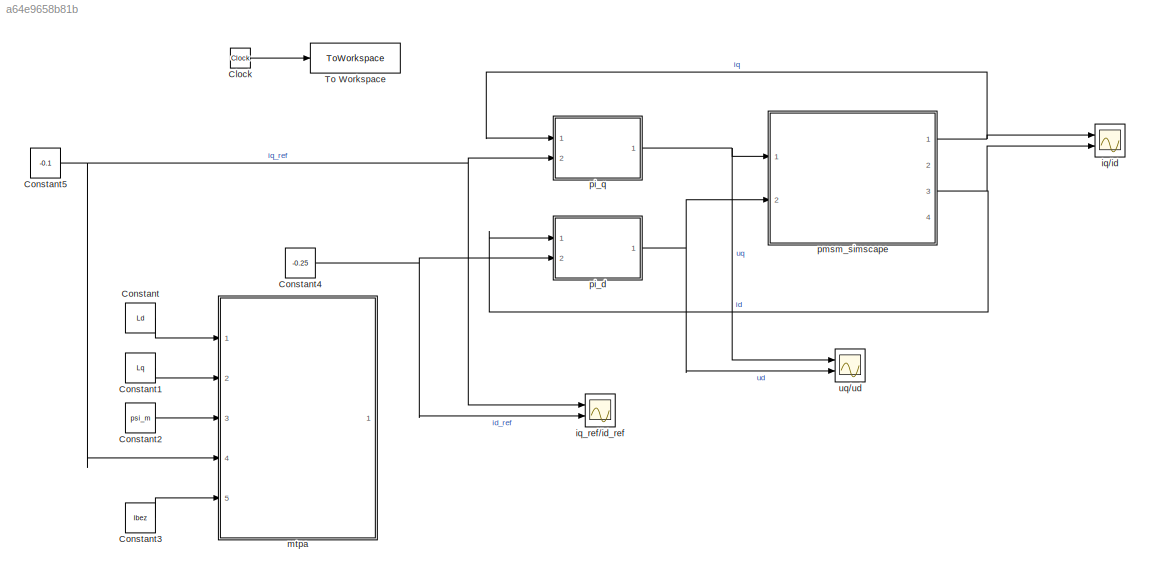
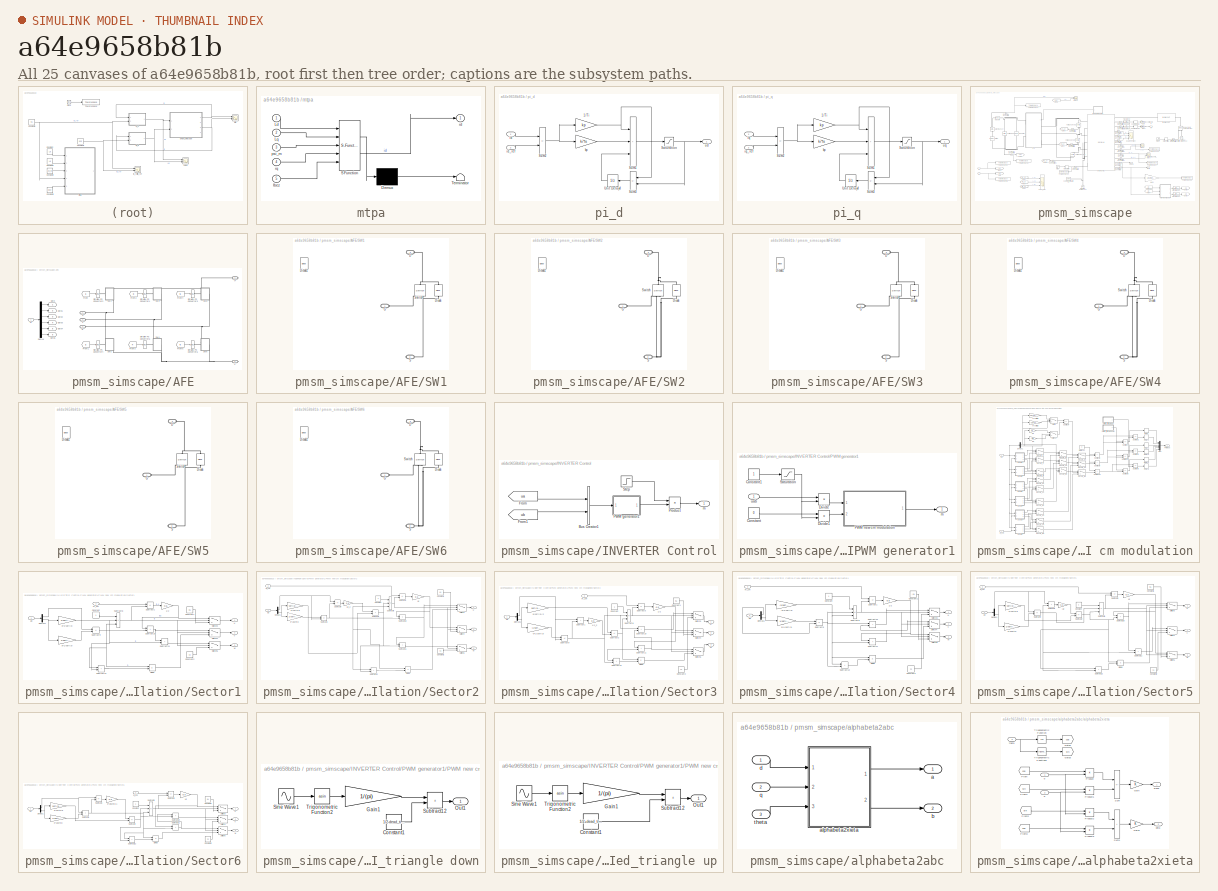
[diagram: thumbnail index - all 25 canvases of the model, root first then tree order]
MODEL slx_a64e9658b81b
KIND model
CONFIG AbsTol = auto
CONFIG EnableMultiTasking = off
CONFIG FixedStep = auto
CONFIG MaxStep = Ts/10
CONFIG MinStep = auto
CONFIG RelTol = auto
CONFIG SampleTimeConstraint = Unconstrained
CONFIG Solver = daessc
CONFIG SolverName = daessc
CONFIG StartTime = 0.0
CONFIG StopTime = simlength
BLOCK [Clock] Clock
BLOCK [Constant] Constant
  Value = Ld
BLOCK [Constant] Constant1
  Value = Lq
BLOCK [Constant] Constant2
  Value = psi_m
BLOCK [Constant] Constant3
  Value = Ibez
BLOCK [Constant] Constant4
  Value = -0.25
BLOCK [Constant] Constant5
  Value = -0.1
BLOCK [ToWorkspace] To Workspace
  FixptAsFi = on
  MaxDataPoints = Nc
  Ports = [1]
  SampleTime = Tc
  VariableName = t
BLOCK [Scope] iq//id
  Floating = off
  NumInputPorts = 2
  Ports = [2]
  ScopeSpecificationString = Simulink.scopes.TimeScopeBlockCfg('CurrentConfiguration', extmgr.ConfigurationSet(extmgr.Configuration('Core','General UI',true),extmgr.Configuration('Core','Source UI',true),extmgr.Configuration('Sources','WiredSimulink',true,'DataLoggingVariableName','ScopeData3','SampleTime','Ts'),extmgr.Configuration('Visuals','Time Domain',true,'SerializedDisplays',{struct('MinYLimReal','-316830.71077','MaxYL...<+1755ch>
BLOCK [Scope] iq_ref//id_ref
  Floating = off
  NumInputPorts = 2
  Ports = [2]
  ScopeSpecificationString = Simulink.scopes.TimeScopeBlockCfg('CurrentConfiguration', extmgr.ConfigurationSet(extmgr.Configuration('Core','General UI',true),extmgr.Configuration('Core','Source UI',true),extmgr.Configuration('Sources','WiredSimulink',true,'DataLoggingVariableName','ScopeData2','SampleTime','Ts'),extmgr.Configuration('Visuals','Time Domain',true,'SerializedDisplays',{struct('MinYLimReal','-0.16163','MaxYLimRea...<+1700ch>
BLOCK [SubSystem] mtpa
  ErrorFcn = Stateflow.Translate.translate
  PermitHierarchicalResolution = ExplicitOnly
  Ports = [5, 1]
  RequestExecContextInheritance = off
  SFBlockType = MATLAB Function
  SystemSampleTime = Ts
  TreatAsAtomicUnit = on
  TreatAsGroupedWhenPropagatingVariantConditions = off
BLOCK [Demux] mtpa/ Demux 
  Outputs = 1
  Ports = [1, 1]
BLOCK [S-Function] mtpa/ SFunction 
  EnableBusSupport = on
  FunctionName = sf_sfun
  PortCounts = [5 2]
  Ports = [5, 2]
  SFcnIsStateOwnerBlock = off
  SFunctionDeploymentMode = off
  Tag = Stateflow S-Function 1
BLOCK [Terminator] mtpa/ Terminator 
BLOCK [Inport] mtpa/Ibez
  Port = 5
BLOCK [Inport] mtpa/Ld
BLOCK [Inport] mtpa/Lq
  Port = 2
BLOCK [Outport] mtpa/id
  VectorParamsAs1DForOutWhenUnconnected = off
BLOCK [Inport] mtpa/iq
  Port = 4
BLOCK [Inport] mtpa/psi_m
  Port = 3
BLOCK [SubSystem] pi_d
  Ports = [2, 1]
  RequestExecContextInheritance = off
BLOCK [Gain] pi_d/1//Ti
  Gain = kp
  OutDataTypeStr = Inherit: Same as input
  ParamDataTypeStr = Inherit: Same as input
  SaturateOnIntegerOverflow = on
BLOCK [Saturate] pi_d/Saturation
  LowerLimit = sat_neg
  UpperLimit = sat_pos
BLOCK [Sum] pi_d/Sum1
  IconShape = rectangular
  Inputs = +++
  Ports = [3, 1]
  SaturateOnIntegerOverflow = on
BLOCK [Sum] pi_d/Sum2
  IconShape = rectangular
  Inputs = -+
  Ports = [2, 1]
  SaturateOnIntegerOverflow = on
BLOCK [Sum] pi_d/Sum3
  IconShape = rectangular
  Inputs = -+
  NameLocation = top
  Ports = [2, 1]
  SaturateOnIntegerOverflow = on
BLOCK [UnitDelay] pi_d/Unit Delay4
  HasFrameUpgradeWarning = on
  SampleTime = ts
BLOCK [Inport] pi_d/id
BLOCK [Inport] pi_d/id_ref
  Port = 2
BLOCK [Gain] pi_d/kp
  Gain = ki*ts
  OutDataTypeStr = Inherit: Same as input
  ParamDataTypeStr = Inherit: Same as input
  SaturateOnIntegerOverflow = on
BLOCK [Outport] pi_d/ud
BLOCK [SubSystem] pi_q
  Ports = [2, 1]
  RequestExecContextInheritance = off
BLOCK [Gain] pi_q/1//Ti
  Gain = kp
  OutDataTypeStr = Inherit: Same as input
  ParamDataTypeStr = Inherit: Same as input
  SaturateOnIntegerOverflow = on
BLOCK [Saturate] pi_q/Saturation
  LowerLimit = sat_neg
  UpperLimit = sat_pos
BLOCK [Sum] pi_q/Sum1
  IconShape = rectangular
  Inputs = +++
  Ports = [3, 1]
  SaturateOnIntegerOverflow = on
BLOCK [Sum] pi_q/Sum2
  IconShape = rectangular
  Inputs = -+
  Ports = [2, 1]
  SaturateOnIntegerOverflow = on
BLOCK [Sum] pi_q/Sum3
  IconShape = rectangular
  Inputs = -+
  NameLocation = top
  Ports = [2, 1]
  SaturateOnIntegerOverflow = on
BLOCK [UnitDelay] pi_q/Unit Delay4
  HasFrameUpgradeWarning = on
  SampleTime = ts
BLOCK [Inport] pi_q/iq
BLOCK [Inport] pi_q/iq_ref
  Port = 2
BLOCK [Gain] pi_q/kp
  Gain = ki*ts
  OutDataTypeStr = Inherit: Same as input
  ParamDataTypeStr = Inherit: Same as input
  SaturateOnIntegerOverflow = on
BLOCK [Outport] pi_q/uq
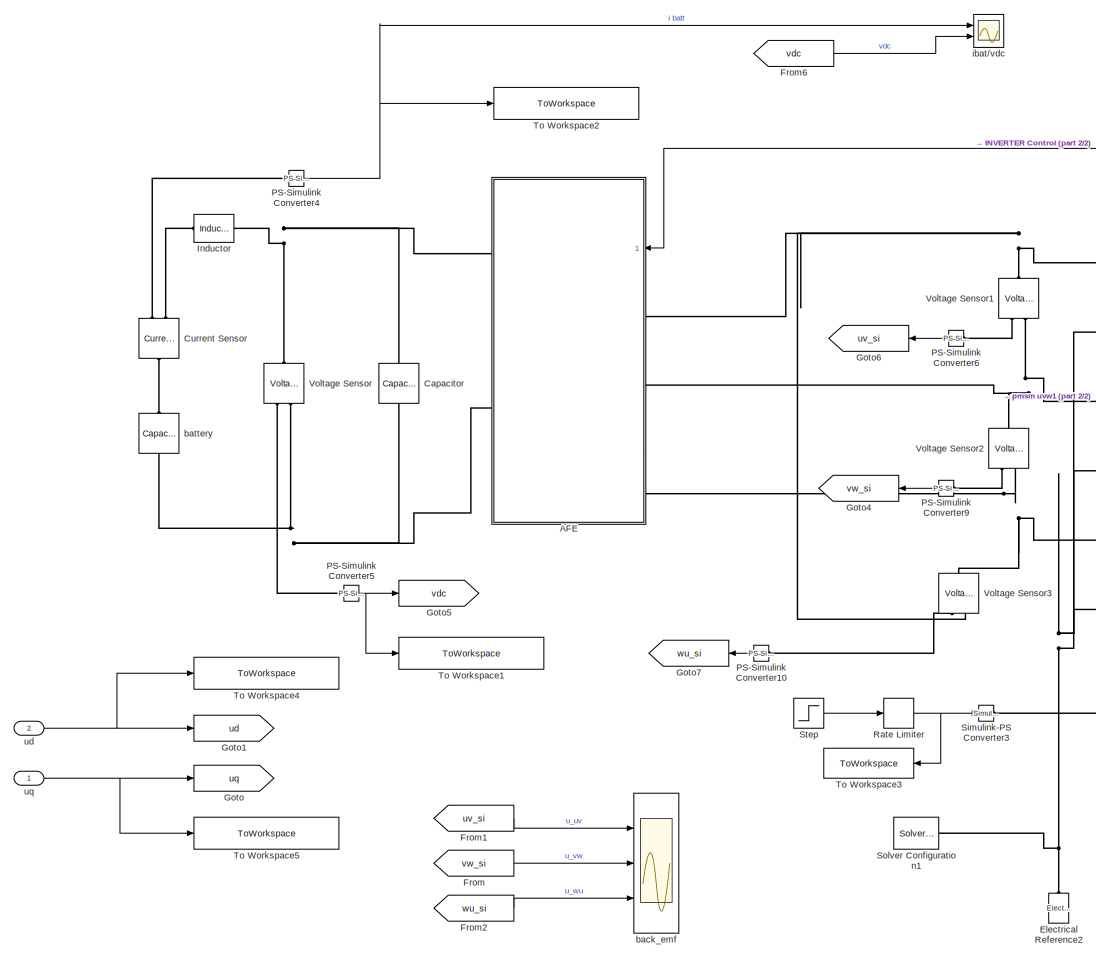
[diagram: pmsm_simscape - part 1/2, left side, full height]
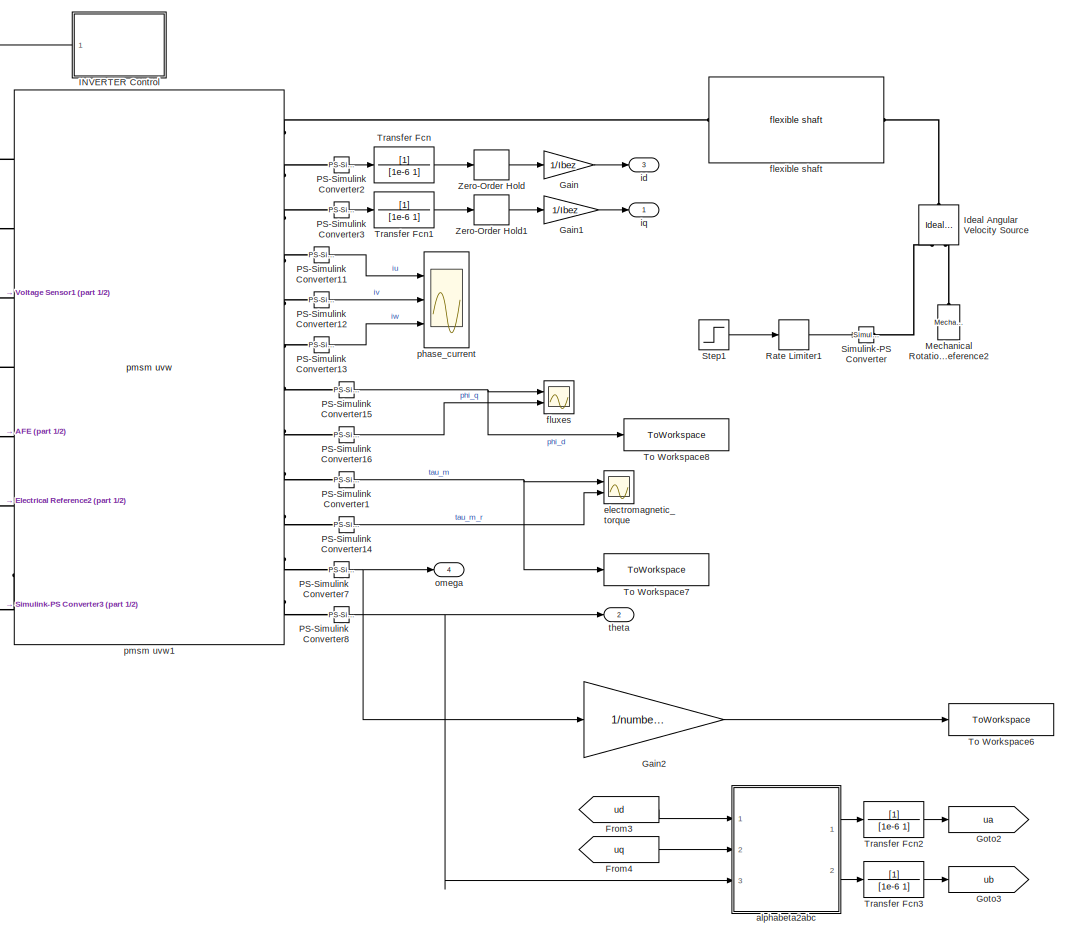
[diagram: pmsm_simscape - part 2/2, right side, full height]
BLOCK [SubSystem] pmsm_simscape
  Ports = [2, 4]
  RequestExecContextInheritance = off
BLOCK [SubSystem] pmsm_simscape/AFE
  Ports = [1, 0, 0, 0, 0, 3, 2]
  RequestExecContextInheritance = off
BLOCK [Demux] pmsm_simscape/AFE/Demux
  Outputs = 6
  Ports = [1, 6]
BLOCK [From] pmsm_simscape/AFE/From
  CloseFcn = tagdialog Close
  GotoTag = I1
BLOCK [From] pmsm_simscape/AFE/From1
  CloseFcn = tagdialog Close
  GotoTag = I2
BLOCK [From] pmsm_simscape/AFE/From2
  CloseFcn = tagdialog Close
  GotoTag = I3
BLOCK [From] pmsm_simscape/AFE/From3
  CloseFcn = tagdialog Close
  GotoTag = I4
BLOCK [From] pmsm_simscape/AFE/From4
  CloseFcn = tagdialog Close
  GotoTag = I5
BLOCK [From] pmsm_simscape/AFE/From5
  CloseFcn = tagdialog Close
  GotoTag = I6
BLOCK [Goto] pmsm_simscape/AFE/Goto
  GotoTag = I1
BLOCK [Goto] pmsm_simscape/AFE/Goto1
  GotoTag = I2
BLOCK [Goto] pmsm_simscape/AFE/Goto2
  GotoTag = I3
BLOCK [Goto] pmsm_simscape/AFE/Goto3
  GotoTag = I4
BLOCK [Goto] pmsm_simscape/AFE/Goto4
  GotoTag = I5
BLOCK [Goto] pmsm_simscape/AFE/Goto5
  GotoTag = I6
BLOCK [SubSystem] pmsm_simscape/AFE/SW1
  PortSchema = {"entries":[{"content":{"sides":[{"content":{"connectorIds":["LConn1"]},"type":"ConnectorPlacement.EquallySpacedRectSide","uuid":"ebeefb4b-0693-4cf6-af95-ed1786d6fcd3"},{"content":{"connectorIds":[],"side":"RIGHT"},"type":"ConnectorPlacement.EquallySpacedRectSide","uuid":"b6a4070d-be39-4125-92ef-a5915edd47f8"},{"content":{"connectorIds":["LConn2"],"side":"TOP"},"type":"ConnectorPlacement.EquallySp...<+399ch>  <repeated x6 — deduplicated; at blocks: SW1, SW2, SW3, SW4, SW5, SW6>
  Ports = [0, 0, 0, 0, 0, 2, 1]
  RequestExecContextInheritance = off
BLOCK [PMIOPort] pmsm_simscape/AFE/SW1/D
  Port = 2
  Side = Left
BLOCK [Reference] pmsm_simscape/AFE/SW1/Diode  REF=ee_lib/Semiconductors &
Converters/Diode
  NameLocation = right
  Ports = [0, 0, 0, 0, 0, 1, 1]
  SourceBlock = ee_lib/Semiconductors &\nConverters/Diode
  SourceProductBaseCode = PS
  SourceType = Diode
BLOCK [Reference] pmsm_simscape/AFE/SW1/Diode1  REF=fl_lib/Electrical/Electrical Elements/Diode
  NameLocation = right
  Ports = [0, 0, 0, 0, 0, 1, 1]
  SourceBlock = fl_lib/Electrical/Electrical Elements/Diode
  SourceProductBaseCode = SS
  SourceType = Diode
BLOCK [PMIOPort] pmsm_simscape/AFE/SW1/G
  Side = Left
BLOCK [PMIOPort] pmsm_simscape/AFE/SW1/S
  Port = 3
  Side = Right
BLOCK [Reference] pmsm_simscape/AFE/SW1/Switch  REF=fl_lib/Electrical/Electrical Elements/Switch
  NameLocation = right
  Ports = [0, 0, 0, 0, 0, 1, 2]
  SourceBlock = fl_lib/Electrical/Electrical Elements/Switch
  SourceProductBaseCode = SS
  SourceType = Switch
BLOCK [SubSystem] pmsm_simscape/AFE/SW2
  Ports = [0, 0, 0, 0, 0, 2, 1]
  RequestExecContextInheritance = off
BLOCK [PMIOPort] pmsm_simscape/AFE/SW2/D
  Port = 2
  Side = Left
BLOCK [Reference] pmsm_simscape/AFE/SW2/Diode  REF=ee_lib/Semiconductors &
Converters/Diode
  NameLocation = right
  Ports = [0, 0, 0, 0, 0, 1, 1]
  SourceBlock = ee_lib/Semiconductors &\nConverters/Diode
  SourceProductBaseCode = PS
  SourceType = Diode
BLOCK [Reference] pmsm_simscape/AFE/SW2/Diode1  REF=fl_lib/Electrical/Electrical Elements/Diode
  NameLocation = right
  Ports = [0, 0, 0, 0, 0, 1, 1]
  SourceBlock = fl_lib/Electrical/Electrical Elements/Diode
  SourceProductBaseCode = SS
  SourceType = Diode
BLOCK [PMIOPort] pmsm_simscape/AFE/SW2/G
  Side = Left
BLOCK [PMIOPort] pmsm_simscape/AFE/SW2/S
  Port = 3
  Side = Right
BLOCK [Reference] pmsm_simscape/AFE/SW2/Switch  REF=fl_lib/Electrical/Electrical Elements/Switch
  NameLocation = right
  Ports = [0, 0, 0, 0, 0, 1, 2]
  SourceBlock = fl_lib/Electrical/Electrical Elements/Switch
  SourceProductBaseCode = SS
  SourceType = Switch
BLOCK [SubSystem] pmsm_simscape/AFE/SW3
  Ports = [0, 0, 0, 0, 0, 2, 1]
  RequestExecContextInheritance = off
BLOCK [PMIOPort] pmsm_simscape/AFE/SW3/D
  Port = 2
  Side = Left
BLOCK [Reference] pmsm_simscape/AFE/SW3/Diode  REF=ee_lib/Semiconductors &
Converters/Diode
  NameLocation = right
  Ports = [0, 0, 0, 0, 0, 1, 1]
  SourceBlock = ee_lib/Semiconductors &\nConverters/Diode
  SourceProductBaseCode = PS
  SourceType = Diode
BLOCK [Reference] pmsm_simscape/AFE/SW3/Diode1  REF=fl_lib/Electrical/Electrical Elements/Diode
  NameLocation = right
  Ports = [0, 0, 0, 0, 0, 1, 1]
  SourceBlock = fl_lib/Electrical/Electrical Elements/Diode
  SourceProductBaseCode = SS
  SourceType = Diode
BLOCK [PMIOPort] pmsm_simscape/AFE/SW3/G
  Side = Left
BLOCK [PMIOPort] pmsm_simscape/AFE/SW3/S
  Port = 3
  Side = Right
BLOCK [Reference] pmsm_simscape/AFE/SW3/Switch  REF=fl_lib/Electrical/Electrical Elements/Switch
  NameLocation = right
  Ports = [0, 0, 0, 0, 0, 1, 2]
  SourceBlock = fl_lib/Electrical/Electrical Elements/Switch
  SourceProductBaseCode = SS
  SourceType = Switch
BLOCK [SubSystem] pmsm_simscape/AFE/SW4
  Ports = [0, 0, 0, 0, 0, 2, 1]
  RequestExecContextInheritance = off
BLOCK [PMIOPort] pmsm_simscape/AFE/SW4/D
  Port = 2
  Side = Left
BLOCK [Reference] pmsm_simscape/AFE/SW4/Diode  REF=ee_lib/Semiconductors &
Converters/Diode
  NameLocation = right
  Ports = [0, 0, 0, 0, 0, 1, 1]
  SourceBlock = ee_lib/Semiconductors &\nConverters/Diode
  SourceProductBaseCode = PS
  SourceType = Diode
BLOCK [Reference] pmsm_simscape/AFE/SW4/Diode1  REF=fl_lib/Electrical/Electrical Elements/Diode
  NameLocation = right
  Ports = [0, 0, 0, 0, 0, 1, 1]
  SourceBlock = fl_lib/Electrical/Electrical Elements/Diode
  SourceProductBaseCode = SS
  SourceType = Diode
BLOCK [PMIOPort] pmsm_simscape/AFE/SW4/G
  Side = Left
BLOCK [PMIOPort] pmsm_simscape/AFE/SW4/S
  Port = 3
  Side = Right
BLOCK [Reference] pmsm_simscape/AFE/SW4/Switch  REF=fl_lib/Electrical/Electrical Elements/Switch
  NameLocation = right
  Ports = [0, 0, 0, 0, 0, 1, 2]
  SourceBlock = fl_lib/Electrical/Electrical Elements/Switch
  SourceProductBaseCode = SS
  SourceType = Switch
BLOCK [SubSystem] pmsm_simscape/AFE/SW5
  Ports = [0, 0, 0, 0, 0, 2, 1]
  RequestExecContextInheritance = off
BLOCK [PMIOPort] pmsm_simscape/AFE/SW5/D
  Port = 2
  Side = Left
BLOCK [Reference] pmsm_simscape/AFE/SW5/Diode  REF=ee_lib/Semiconductors &
Converters/Diode
  NameLocation = right
  Ports = [0, 0, 0, 0, 0, 1, 1]
  SourceBlock = ee_lib/Semiconductors &\nConverters/Diode
  SourceProductBaseCode = PS
  SourceType = Diode
BLOCK [Reference] pmsm_simscape/AFE/SW5/Diode1  REF=fl_lib/Electrical/Electrical Elements/Diode
  NameLocation = right
  Ports = [0, 0, 0, 0, 0, 1, 1]
  SourceBlock = fl_lib/Electrical/Electrical Elements/Diode
  SourceProductBaseCode = SS
  SourceType = Diode
BLOCK [PMIOPort] pmsm_simscape/AFE/SW5/G
  Side = Left
BLOCK [PMIOPort] pmsm_simscape/AFE/SW5/S
  Port = 3
  Side = Right
BLOCK [Reference] pmsm_simscape/AFE/SW5/Switch  REF=fl_lib/Electrical/Electrical Elements/Switch
  NameLocation = right
  Ports = [0, 0, 0, 0, 0, 1, 2]
  SourceBlock = fl_lib/Electrical/Electrical Elements/Switch
  SourceProductBaseCode = SS
  SourceType = Switch
BLOCK [SubSystem] pmsm_simscape/AFE/SW6
  Ports = [0, 0, 0, 0, 0, 2, 1]
  RequestExecContextInheritance = off
BLOCK [PMIOPort] pmsm_simscape/AFE/SW6/D
  Port = 2
  Side = Left
BLOCK [Reference] pmsm_simscape/AFE/SW6/Diode  REF=ee_lib/Semiconductors &
Converters/Diode
  NameLocation = right
  Ports = [0, 0, 0, 0, 0, 1, 1]
  SourceBlock = ee_lib/Semiconductors &\nConverters/Diode
  SourceProductBaseCode = PS
  SourceType = Diode
BLOCK [Reference] pmsm_simscape/AFE/SW6/Diode1  REF=fl_lib/Electrical/Electrical Elements/Diode
  NameLocation = right
  Ports = [0, 0, 0, 0, 0, 1, 1]
  SourceBlock = fl_lib/Electrical/Electrical Elements/Diode
  SourceProductBaseCode = SS
  SourceType = Diode
BLOCK [PMIOPort] pmsm_simscape/AFE/SW6/G
  Side = Left
BLOCK [PMIOPort] pmsm_simscape/AFE/SW6/S
  Port = 3
  Side = Right
BLOCK [Reference] pmsm_simscape/AFE/SW6/Switch  REF=fl_lib/Electrical/Electrical Elements/Switch
  NameLocation = right
  Ports = [0, 0, 0, 0, 0, 1, 2]
  SourceBlock = fl_lib/Electrical/Electrical Elements/Switch
  SourceProductBaseCode = SS
  SourceType = Switch
BLOCK [Reference] pmsm_simscape/AFE/Simulink-PS Converter1  REF=nesl_utility/Simulink-PS
Converter
  Ports = [1, 0, 0, 0, 0, 0, 1]
  SourceBlock = nesl_utility/Simulink-PS\nConverter
  SourceProductBaseCode = SS
  SourceType = Simulink-PS\nConverter
BLOCK [Reference] pmsm_simscape/AFE/Simulink-PS Converter2  REF=nesl_utility/Simulink-PS
Converter
  Ports = [1, 0, 0, 0, 0, 0, 1]
  SourceBlock = nesl_utility/Simulink-PS\nConverter
  SourceProductBaseCode = SS
  SourceType = Simulink-PS\nConverter
BLOCK [Reference] pmsm_simscape/AFE/Simulink-PS Converter3  REF=nesl_utility/Simulink-PS
Converter
  Ports = [1, 0, 0, 0, 0, 0, 1]
  SourceBlock = nesl_utility/Simulink-PS\nConverter
  SourceProductBaseCode = SS
  SourceType = Simulink-PS\nConverter
BLOCK [Reference] pmsm_simscape/AFE/Simulink-PS Converter4  REF=nesl_utility/Simulink-PS
Converter
  Ports = [1, 0, 0, 0, 0, 0, 1]
  SourceBlock = nesl_utility/Simulink-PS\nConverter
  SourceProductBaseCode = SS
  SourceType = Simulink-PS\nConverter
BLOCK [Reference] pmsm_simscape/AFE/Simulink-PS Converter5  REF=nesl_utility/Simulink-PS
Converter
  Ports = [1, 0, 0, 0, 0, 0, 1]
  SourceBlock = nesl_utility/Simulink-PS\nConverter
  SourceProductBaseCode = SS
  SourceType = Simulink-PS\nConverter
BLOCK [Reference] pmsm_simscape/AFE/Simulink-PS Converter6  REF=nesl_utility/Simulink-PS
Converter
  Ports = [1, 0, 0, 0, 0, 0, 1]
  SourceBlock = nesl_utility/Simulink-PS\nConverter
  SourceProductBaseCode = SS
  SourceType = Simulink-PS\nConverter
BLOCK [PMIOPort] pmsm_simscape/AFE/V+
  Port = 4
  Side = Right
BLOCK [PMIOPort] pmsm_simscape/AFE/V-
  Port = 5
  Side = Right
BLOCK [Inport] pmsm_simscape/AFE/m
BLOCK [PMIOPort] pmsm_simscape/AFE/u
  Side = Left
BLOCK [PMIOPort] pmsm_simscape/AFE/v
  Port = 2
  Side = Left
BLOCK [PMIOPort] pmsm_simscape/AFE/w
  Port = 3
  Side = Left
BLOCK [Reference] pmsm_simscape/Capacitor  REF=fl_lib/Electrical/Electrical Elements/Capacitor
  NameLocation = left
  Ports = [0, 0, 0, 0, 0, 1, 1]
  SourceBlock = fl_lib/Electrical/Electrical Elements/Capacitor
  SourceProductBaseCode = SS
  SourceType = Capacitor
BLOCK [Reference] pmsm_simscape/Current Sensor  REF=fl_lib/Electrical/Electrical Sensors/Current Sensor
  NameLocation = right
  Ports = [0, 0, 0, 0, 0, 1, 2]
  SourceBlock = fl_lib/Electrical/Electrical Sensors/Current Sensor
  SourceProductBaseCode = SS
  SourceType = Current Sensor
BLOCK [Reference] pmsm_simscape/Electrical Reference2  REF=fl_lib/Electrical/Electrical Elements/Electrical Reference
  NameLocation = right
  Ports = [0, 0, 0, 0, 0, 1]
  SourceBlock = fl_lib/Electrical/Electrical Elements/Electrical Reference
  SourceProductBaseCode = SS
  SourceType = Electrical Reference
BLOCK [From] pmsm_simscape/From
  GotoTag = vw_si
  NameLocation = top
BLOCK [From] pmsm_simscape/From1
  GotoTag = uv_si
  NameLocation = top
BLOCK [From] pmsm_simscape/From2
  GotoTag = wu_si
  NameLocation = top
BLOCK [From] pmsm_simscape/From3
  GotoTag = ud
BLOCK [From] pmsm_simscape/From4
  GotoTag = uq
BLOCK [From] pmsm_simscape/From6
  GotoTag = vdc
BLOCK [Gain] pmsm_simscape/Gain
  Gain = 1/Ibez
BLOCK [Gain] pmsm_simscape/Gain1
  Gain = 1/Ibez
BLOCK [Gain] pmsm_simscape/Gain2
  Gain = 1/number_poles/pi*60
BLOCK [Goto] pmsm_simscape/Goto
  GotoTag = uq
BLOCK [Goto] pmsm_simscape/Goto1
  GotoTag = ud
  NameLocation = top
BLOCK [Goto] pmsm_simscape/Goto2
  GotoTag = ua
  NameLocation = top
  TagVisibility = global
BLOCK [Goto] pmsm_simscape/Goto3
  GotoTag = ub
  NameLocation = top
  TagVisibility = global
BLOCK [Goto] pmsm_simscape/Goto4
  GotoTag = vw_si
  NameLocation = top
BLOCK [Goto] pmsm_simscape/Goto5
  GotoTag = vdc
BLOCK [Goto] pmsm_simscape/Goto6
  GotoTag = uv_si
  NameLocation = top
BLOCK [Goto] pmsm_simscape/Goto7
  GotoTag = wu_si
  NameLocation = top
BLOCK [SubSystem] pmsm_simscape/INVERTER Control
  NameLocation = top
  Ports = [0, 1]
  RequestExecContextInheritance = off
BLOCK [BusCreator] pmsm_simscape/INVERTER Control/Bus Creator1
  DisplayOption = bar
  InheritFromInputs = on
  Inputs = 2
  Ports = [2, 1]
BLOCK [From] pmsm_simscape/INVERTER Control/From
  GotoTag = ua
  TagVisibility = global
BLOCK [From] pmsm_simscape/INVERTER Control/From1
  GotoTag = ub
  TagVisibility = global
BLOCK [SubSystem] pmsm_simscape/INVERTER Control/PWM generator1
  Ports = [1, 1]
  RequestExecContextInheritance = off
BLOCK [Constant] pmsm_simscape/INVERTER Control/PWM generator1/Constant
  Value = 0
BLOCK [Constant] pmsm_simscape/INVERTER Control/PWM generator1/Constant1
BLOCK [Product] pmsm_simscape/INVERTER Control/PWM generator1/Divide
  Inputs = */
  Ports = [2, 1]
BLOCK [Product] pmsm_simscape/INVERTER Control/PWM generator1/Divide1
  Inputs = */
  Ports = [2, 1]
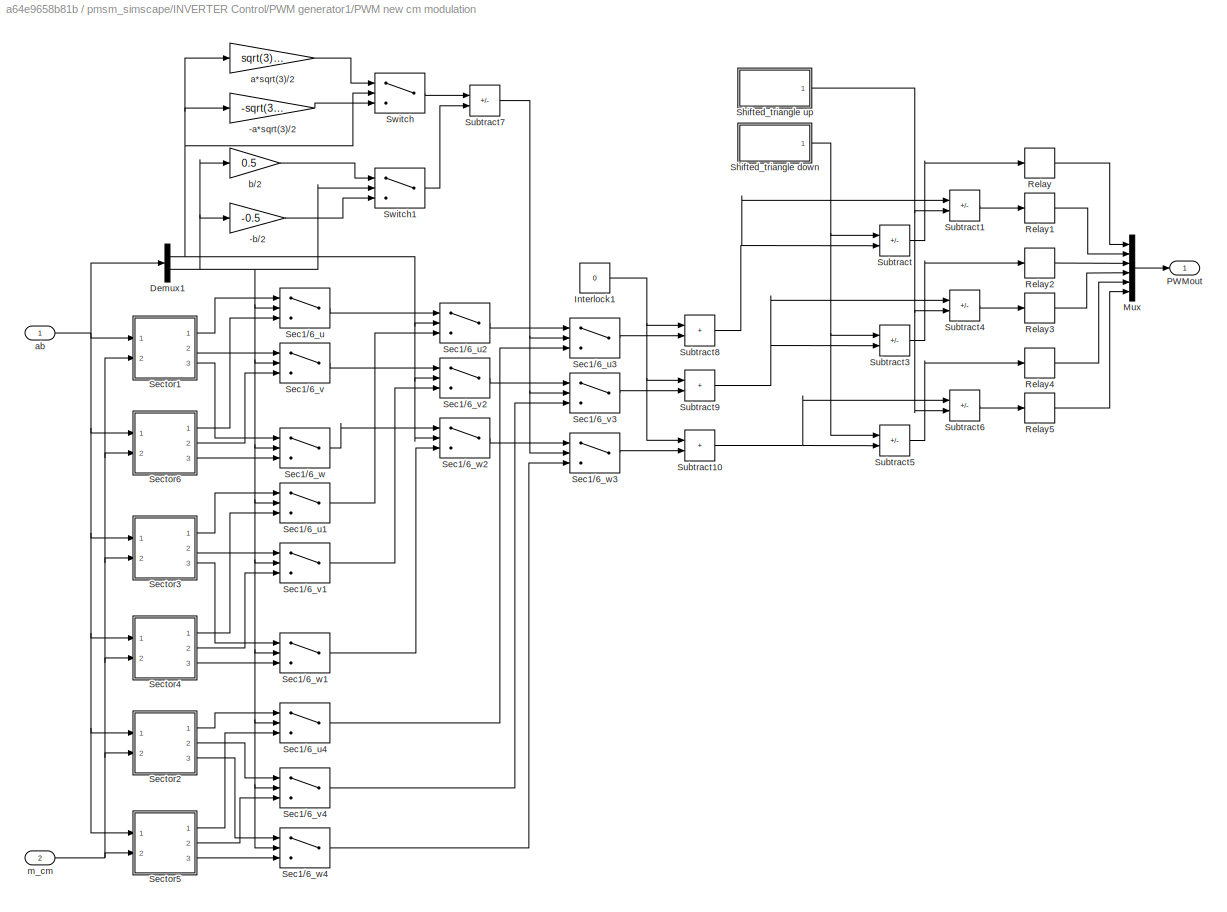
BLOCK [SubSystem] pmsm_simscape/INVERTER Control/PWM generator1/PWM new cm modulation
  Ports = [2, 1]
  RequestExecContextInheritance = off
BLOCK [Gain] pmsm_simscape/INVERTER Control/PWM generator1/PWM new cm modulation/-a*sqrt(3)//2
  Gain = -sqrt(3)/2
BLOCK [Gain] pmsm_simscape/INVERTER Control/PWM generator1/PWM new cm modulation/-b//2
  Gain = -0.5
BLOCK [Demux] pmsm_simscape/INVERTER Control/PWM generator1/PWM new cm modulation/Demux1
  Outputs = 2
  Ports = [1, 2]
BLOCK [Constant] pmsm_simscape/INVERTER Control/PWM generator1/PWM new cm modulation/Interlock1
  Value = 0
BLOCK [Mux] pmsm_simscape/INVERTER Control/PWM generator1/PWM new cm modulation/Mux
  DisplayOption = bar
  Inputs = 6
  Ports = [6, 1]
BLOCK [Outport] pmsm_simscape/INVERTER Control/PWM generator1/PWM new cm modulation/PWMout
BLOCK [Relay] pmsm_simscape/INVERTER Control/PWM generator1/PWM new cm modulation/Relay
  OnOutputValue = 15
BLOCK [Relay] pmsm_simscape/INVERTER Control/PWM generator1/PWM new cm modulation/Relay1
  OnOutputValue = 15
BLOCK [Relay] pmsm_simscape/INVERTER Control/PWM generator1/PWM new cm modulation/Relay2
  OnOutputValue = 15
BLOCK [Relay] pmsm_simscape/INVERTER Control/PWM generator1/PWM new cm modulation/Relay3
  OnOutputValue = 15
BLOCK [Relay] pmsm_simscape/INVERTER Control/PWM generator1/PWM new cm modulation/Relay4
  OnOutputValue = 15
BLOCK [Relay] pmsm_simscape/INVERTER Control/PWM generator1/PWM new cm modulation/Relay5
  OnOutputValue = 15
BLOCK [Switch] pmsm_simscape/INVERTER Control/PWM generator1/PWM new cm modulation/Sec1//6_u
  InputSameDT = off
  SaturateOnIntegerOverflow = off
BLOCK [Switch] pmsm_simscape/INVERTER Control/PWM generator1/PWM new cm modulation/Sec1//6_u1
  InputSameDT = off
  SaturateOnIntegerOverflow = off
BLOCK [Switch] pmsm_simscape/INVERTER Control/PWM generator1/PWM new cm modulation/Sec1//6_u2
  InputSameDT = off
  SaturateOnIntegerOverflow = off
BLOCK [Switch] pmsm_simscape/INVERTER Control/PWM generator1/PWM new cm modulation/Sec1//6_u3
  InputSameDT = off
  SaturateOnIntegerOverflow = off
BLOCK [Switch] pmsm_simscape/INVERTER Control/PWM generator1/PWM new cm modulation/Sec1//6_u4
  InputSameDT = off
  SaturateOnIntegerOverflow = off
BLOCK [Switch] pmsm_simscape/INVERTER Control/PWM generator1/PWM new cm modulation/Sec1//6_v
  InputSameDT = off
  SaturateOnIntegerOverflow = off
BLOCK [Switch] pmsm_simscape/INVERTER Control/PWM generator1/PWM new cm modulation/Sec1//6_v1
  InputSameDT = off
  SaturateOnIntegerOverflow = off
BLOCK [Switch] pmsm_simscape/INVERTER Control/PWM generator1/PWM new cm modulation/Sec1//6_v2
  InputSameDT = off
  SaturateOnIntegerOverflow = off
BLOCK [Switch] pmsm_simscape/INVERTER Control/PWM generator1/PWM new cm modulation/Sec1//6_v3
  InputSameDT = off
  SaturateOnIntegerOverflow = off
BLOCK [Switch] pmsm_simscape/INVERTER Control/PWM generator1/PWM new cm modulation/Sec1//6_v4
  InputSameDT = off
  SaturateOnIntegerOverflow = off
BLOCK [Switch] pmsm_simscape/INVERTER Control/PWM generator1/PWM new cm modulation/Sec1//6_w
  InputSameDT = off
  SaturateOnIntegerOverflow = off
BLOCK [Switch] pmsm_simscape/INVERTER Control/PWM generator1/PWM new cm modulation/Sec1//6_w1
  InputSameDT = off
  SaturateOnIntegerOverflow = off
BLOCK [Switch] pmsm_simscape/INVERTER Control/PWM generator1/PWM new cm modulation/Sec1//6_w2
  InputSameDT = off
  SaturateOnIntegerOverflow = off
BLOCK [Switch] pmsm_simscape/INVERTER Control/PWM generator1/PWM new cm modulation/Sec1//6_w3
  InputSameDT = off
  SaturateOnIntegerOverflow = off
BLOCK [Switch] pmsm_simscape/INVERTER Control/PWM generator1/PWM new cm modulation/Sec1//6_w4
  InputSameDT = off
  SaturateOnIntegerOverflow = off
BLOCK [SubSystem] pmsm_simscape/INVERTER Control/PWM generator1/PWM new cm modulation/Sector1
  Ports = [2, 3]
  RequestExecContextInheritance = off
BLOCK [Gain] pmsm_simscape/INVERTER Control/PWM generator1/PWM new cm modulation/Sector1/1//2
  Gain = 0.5
BLOCK [Constant] pmsm_simscape/INVERTER Control/PWM generator1/PWM new cm modulation/Sector1/Constant
BLOCK [Constant] pmsm_simscape/INVERTER Control/PWM generator1/PWM new cm modulation/Sector1/Constant1
  Value = -0.1
BLOCK [Constant] pmsm_simscape/INVERTER Control/PWM generator1/PWM new cm modulation/Sector1/Constant2
  Value = 1.1
BLOCK [Demux] pmsm_simscape/INVERTER Control/PWM generator1/PWM new cm modulation/Sector1/Demux1
  Outputs = 2
  Ports = [1, 2]
BLOCK [Product] pmsm_simscape/INVERTER Control/PWM generator1/PWM new cm modulation/Sector1/Divide
  Inputs = */
  Ports = [2, 1]
BLOCK [Sum] pmsm_simscape/INVERTER Control/PWM generator1/PWM new cm modulation/Sector1/Subtract1
  IconShape = rectangular
  Inputs = -+
  Ports = [2, 1]
BLOCK [Sum] pmsm_simscape/INVERTER Control/PWM generator1/PWM new cm modulation/Sector1/Subtract10
  IconShape = rectangular
  Ports = [2, 1]
BLOCK [Sum] pmsm_simscape/INVERTER Control/PWM generator1/PWM new cm modulation/Sector1/Subtract11
  IconShape = rectangular
  Ports = [2, 1]
BLOCK [Sum] pmsm_simscape/INVERTER Control/PWM generator1/PWM new cm modulation/Sector1/Subtract12
  IconShape = rectangular
  Ports = [2, 1]
BLOCK [Sum] pmsm_simscape/INVERTER Control/PWM generator1/PWM new cm modulation/Sector1/Subtract8
  IconShape = rectangular
  Inputs = +--
  Ports = [3, 1]
BLOCK [Sum] pmsm_simscape/INVERTER Control/PWM generator1/PWM new cm modulation/Sector1/Subtract9
  IconShape = rectangular
  Inputs = +-
  Ports = [2, 1]
BLOCK [Switch] pmsm_simscape/INVERTER Control/PWM generator1/PWM new cm modulation/Sector1/Switch3
  InputSameDT = off
  SaturateOnIntegerOverflow = off
BLOCK [Switch] pmsm_simscape/INVERTER Control/PWM generator1/PWM new cm modulation/Sector1/Switch4
  InputSameDT = off
  SaturateOnIntegerOverflow = off
BLOCK [Switch] pmsm_simscape/INVERTER Control/PWM generator1/PWM new cm modulation/Sector1/Switch5
  InputSameDT = off
  SaturateOnIntegerOverflow = off
BLOCK [Outport] pmsm_simscape/INVERTER Control/PWM generator1/PWM new cm modulation/Sector1/U
BLOCK [Outport] pmsm_simscape/INVERTER Control/PWM generator1/PWM new cm modulation/Sector1/V
  Port = 2
BLOCK [Outport] pmsm_simscape/INVERTER Control/PWM generator1/PWM new cm modulation/Sector1/W
  Port = 3
BLOCK [Inport] pmsm_simscape/INVERTER Control/PWM generator1/PWM new cm modulation/Sector1/ab
BLOCK [Gain] pmsm_simscape/INVERTER Control/PWM generator1/PWM new cm modulation/Sector1/b*1//sqrt(3)
  Gain = 1/sqrt(3)
BLOCK [Gain] pmsm_simscape/INVERTER Control/PWM generator1/PWM new cm modulation/Sector1/b*2//sqrt(3)
  Gain = 2/sqrt(3)
BLOCK [Inport] pmsm_simscape/INVERTER Control/PWM generator1/PWM new cm modulation/Sector1/m_cm
  Port = 2
BLOCK [SubSystem] pmsm_simscape/INVERTER Control/PWM generator1/PWM new cm modulation/Sector2
  Ports = [2, 3]
  RequestExecContextInheritance = off
BLOCK [Gain] pmsm_simscape/INVERTER Control/PWM generator1/PWM new cm modulation/Sector2/1//2
  Gain = 0.5
BLOCK [Gain] pmsm_simscape/INVERTER Control/PWM generator1/PWM new cm modulation/Sector2/1//2_2
  Gain = 0.5
BLOCK [Constant] pmsm_simscape/INVERTER Control/PWM generator1/PWM new cm modulation/Sector2/Constant
BLOCK [Constant] pmsm_simscape/INVERTER Control/PWM generator1/PWM new cm modulation/Sector2/Constant1
  Value = -0.1
BLOCK [Constant] pmsm_simscape/INVERTER Control/PWM generator1/PWM new cm modulation/Sector2/Constant2
  Value = 1.1
BLOCK [Demux] pmsm_simscape/INVERTER Control/PWM generator1/PWM new cm modulation/Sector2/Demux1
  Outputs = 2
  Ports = [1, 2]
BLOCK [Product] pmsm_simscape/INVERTER Control/PWM generator1/PWM new cm modulation/Sector2/Divide
  Inputs = */
  Ports = [2, 1]
BLOCK [Sum] pmsm_simscape/INVERTER Control/PWM generator1/PWM new cm modulation/Sector2/Subtract1
  IconShape = rectangular
  Inputs = +-
  Ports = [2, 1]
BLOCK [Sum] pmsm_simscape/INVERTER Control/PWM generator1/PWM new cm modulation/Sector2/Subtract10
  IconShape = rectangular
  Ports = [2, 1]
BLOCK [Sum] pmsm_simscape/INVERTER Control/PWM generator1/PWM new cm modulation/Sector2/Subtract11
  IconShape = rectangular
  Ports = [2, 1]
BLOCK [Sum] pmsm_simscape/INVERTER Control/PWM generator1/PWM new cm modulation/Sector2/Subtract12
  IconShape = rectangular
  Ports = [2, 1]
BLOCK [Sum] pmsm_simscape/INVERTER Control/PWM generator1/PWM new cm modulation/Sector2/Subtract2
  IconShape = rectangular
  Ports = [2, 1]
BLOCK [Sum] pmsm_simscape/INVERTER Control/PWM generator1/PWM new cm modulation/Sector2/Subtract3
  IconShape = rectangular
  Inputs = -+
  Ports = [2, 1]
BLOCK [Sum] pmsm_simscape/INVERTER Control/PWM generator1/PWM new cm modulation/Sector2/Subtract8
  IconShape = rectangular
  Inputs = +--
  Ports = [3, 1]
BLOCK [Sum] pmsm_simscape/INVERTER Control/PWM generator1/PWM new cm modulation/Sector2/Subtract9
  IconShape = rectangular
  Inputs = +-
  Ports = [2, 1]
BLOCK [Switch] pmsm_simscape/INVERTER Control/PWM generator1/PWM new cm modulation/Sector2/Switch3
  InputSameDT = off
  SaturateOnIntegerOverflow = off
BLOCK [Switch] pmsm_simscape/INVERTER Control/PWM generator1/PWM new cm modulation/Sector2/Switch4
  InputSameDT = off
  SaturateOnIntegerOverflow = off
BLOCK [Switch] pmsm_simscape/INVERTER Control/PWM generator1/PWM new cm modulation/Sector2/Switch5
  InputSameDT = off
  SaturateOnIntegerOverflow = off
BLOCK [Outport] pmsm_simscape/INVERTER Control/PWM generator1/PWM new cm modulation/Sector2/U
BLOCK [Outport] pmsm_simscape/INVERTER Control/PWM generator1/PWM new cm modulation/Sector2/V
  Port = 2
BLOCK [Outport] pmsm_simscape/INVERTER Control/PWM generator1/PWM new cm modulation/Sector2/W
  Port = 3
BLOCK [Inport] pmsm_simscape/INVERTER Control/PWM generator1/PWM new cm modulation/Sector2/ab
BLOCK [Gain] pmsm_simscape/INVERTER Control/PWM generator1/PWM new cm modulation/Sector2/b*1//sqrt(3)
  Gain = 1/sqrt(3)
BLOCK [Gain] pmsm_simscape/INVERTER Control/PWM generator1/PWM new cm modulation/Sector2/b*sqrt(3)//2
  Gain = sqrt(3)/2
BLOCK [Inport] pmsm_simscape/INVERTER Control/PWM generator1/PWM new cm modulation/Sector2/m_cm
  Port = 2
BLOCK [SubSystem] pmsm_simscape/INVERTER Control/PWM generator1/PWM new cm modulation/Sector3
  Ports = [2, 3]
  RequestExecContextInheritance = off
BLOCK [Gain] pmsm_simscape/INVERTER Control/PWM generator1/PWM new cm modulation/Sector3/-b*1//sqrt(3)
  Gain = -1/sqrt(3)
BLOCK [Gain] pmsm_simscape/INVERTER Control/PWM generator1/PWM new cm modulation/Sector3/1//2
  Gain = 0.5
BLOCK [Gain] pmsm_simscape/INVERTER Control/PWM generator1/PWM new cm modulation/Sector3/1//2_2
  Gain = 0.5
BLOCK [Constant] pmsm_simscape/INVERTER Control/PWM generator1/PWM new cm modulation/Sector3/Constant
BLOCK [Constant] pmsm_simscape/INVERTER Control/PWM generator1/PWM new cm modulation/Sector3/Constant1
  Value = -0.1
BLOCK [Constant] pmsm_simscape/INVERTER Control/PWM generator1/PWM new cm modulation/Sector3/Constant2
  Value = 1.1
BLOCK [Demux] pmsm_simscape/INVERTER Control/PWM generator1/PWM new cm modulation/Sector3/Demux1
  Outputs = 2
  Ports = [1, 2]
BLOCK [Product] pmsm_simscape/INVERTER Control/PWM generator1/PWM new cm modulation/Sector3/Divide
  Inputs = */
  Ports = [2, 1]
BLOCK [Sum] pmsm_simscape/INVERTER Control/PWM generator1/PWM new cm modulation/Sector3/Subtract1
  IconShape = rectangular
  Ports = [2, 1]
BLOCK [Sum] pmsm_simscape/INVERTER Control/PWM generator1/PWM new cm modulation/Sector3/Subtract10
  IconShape = rectangular
  Ports = [2, 1]
BLOCK [Sum] pmsm_simscape/INVERTER Control/PWM generator1/PWM new cm modulation/Sector3/Subtract11
  IconShape = rectangular
  Ports = [2, 1]
BLOCK [Sum] pmsm_simscape/INVERTER Control/PWM generator1/PWM new cm modulation/Sector3/Subtract12
  IconShape = rectangular
  Ports = [2, 1]
BLOCK [Sum] pmsm_simscape/INVERTER Control/PWM generator1/PWM new cm modulation/Sector3/Subtract2
  IconShape = rectangular
  Inputs = +-
  Ports = [2, 1]
BLOCK [Sum] pmsm_simscape/INVERTER Control/PWM generator1/PWM new cm modulation/Sector3/Subtract3
  IconShape = rectangular
  Inputs = -+
  Ports = [2, 1]
BLOCK [Sum] pmsm_simscape/INVERTER Control/PWM generator1/PWM new cm modulation/Sector3/Subtract8
  IconShape = rectangular
  Inputs = +--
  Ports = [3, 1]
BLOCK [Sum] pmsm_simscape/INVERTER Control/PWM generator1/PWM new cm modulation/Sector3/Subtract9
  IconShape = rectangular
  Inputs = +-
  Ports = [2, 1]
BLOCK [Switch] pmsm_simscape/INVERTER Control/PWM generator1/PWM new cm modulation/Sector3/Switch3
  InputSameDT = off
  SaturateOnIntegerOverflow = off
BLOCK [Switch] pmsm_simscape/INVERTER Control/PWM generator1/PWM new cm modulation/Sector3/Switch4
  InputSameDT = off
  SaturateOnIntegerOverflow = off
BLOCK [Switch] pmsm_simscape/INVERTER Control/PWM generator1/PWM new cm modulation/Sector3/Switch5
  InputSameDT = off
  SaturateOnIntegerOverflow = off
BLOCK [Outport] pmsm_simscape/INVERTER Control/PWM generator1/PWM new cm modulation/Sector3/U
BLOCK [Outport] pmsm_simscape/INVERTER Control/PWM generator1/PWM new cm modulation/Sector3/V
  Port = 2
BLOCK [Outport] pmsm_simscape/INVERTER Control/PWM generator1/PWM new cm modulation/Sector3/W
  Port = 3
BLOCK [Inport] pmsm_simscape/INVERTER Control/PWM generator1/PWM new cm modulation/Sector3/ab
BLOCK [Gain] pmsm_simscape/INVERTER Control/PWM generator1/PWM new cm modulation/Sector3/b*sqrt(3)//2
  Gain = sqrt(3)/2
BLOCK [Inport] pmsm_simscape/INVERTER Control/PWM generator1/PWM new cm modulation/Sector3/m_cm
  Port = 2
BLOCK [SubSystem] pmsm_simscape/INVERTER Control/PWM generator1/PWM new cm modulation/Sector4
  Ports = [2, 3]
  RequestExecContextInheritance = off
BLOCK [Gain] pmsm_simscape/INVERTER Control/PWM generator1/PWM new cm modulation/Sector4/-b*2//sqrt(3)
  Gain = -2/sqrt(3)
BLOCK [Gain] pmsm_simscape/INVERTER Control/PWM generator1/PWM new cm modulation/Sector4/1//2
  Gain = 0.5
BLOCK [Constant] pmsm_simscape/INVERTER Control/PWM generator1/PWM new cm modulation/Sector4/Constant
BLOCK [Constant] pmsm_simscape/INVERTER Control/PWM generator1/PWM new cm modulation/Sector4/Constant1
  Value = -0.1
BLOCK [Constant] pmsm_simscape/INVERTER Control/PWM generator1/PWM new cm modulation/Sector4/Constant2
  Value = 1.1
BLOCK [Demux] pmsm_simscape/INVERTER Control/PWM generator1/PWM new cm modulation/Sector4/Demux1
  Outputs = 2
  Ports = [1, 2]
BLOCK [Product] pmsm_simscape/INVERTER Control/PWM generator1/PWM new cm modulation/Sector4/Divide
  Inputs = */
  Ports = [2, 1]
BLOCK [Sum] pmsm_simscape/INVERTER Control/PWM generator1/PWM new cm modulation/Sector4/Subtract1
  IconShape = rectangular
  Inputs = -+
  Ports = [2, 1]
BLOCK [Sum] pmsm_simscape/INVERTER Control/PWM generator1/PWM new cm modulation/Sector4/Subtract10
  IconShape = rectangular
  Ports = [2, 1]
BLOCK [Sum] pmsm_simscape/INVERTER Control/PWM generator1/PWM new cm modulation/Sector4/Subtract11
  IconShape = rectangular
  Ports = [2, 1]
BLOCK [Sum] pmsm_simscape/INVERTER Control/PWM generator1/PWM new cm modulation/Sector4/Subtract12
  IconShape = rectangular
  Ports = [2, 1]
BLOCK [Sum] pmsm_simscape/INVERTER Control/PWM generator1/PWM new cm modulation/Sector4/Subtract8
  IconShape = rectangular
  Inputs = +--
  Ports = [3, 1]
BLOCK [Sum] pmsm_simscape/INVERTER Control/PWM generator1/PWM new cm modulation/Sector4/Subtract9
  IconShape = rectangular
  Inputs = +-
  Ports = [2, 1]
BLOCK [Switch] pmsm_simscape/INVERTER Control/PWM generator1/PWM new cm modulation/Sector4/Switch3
  InputSameDT = off
  SaturateOnIntegerOverflow = off
BLOCK [Switch] pmsm_simscape/INVERTER Control/PWM generator1/PWM new cm modulation/Sector4/Switch4
  InputSameDT = off
  SaturateOnIntegerOverflow = off
BLOCK [Switch] pmsm_simscape/INVERTER Control/PWM generator1/PWM new cm modulation/Sector4/Switch5
  InputSameDT = off
  SaturateOnIntegerOverflow = off
BLOCK [Outport] pmsm_simscape/INVERTER Control/PWM generator1/PWM new cm modulation/Sector4/U
BLOCK [Outport] pmsm_simscape/INVERTER Control/PWM generator1/PWM new cm modulation/Sector4/V
  Port = 2
BLOCK [Outport] pmsm_simscape/INVERTER Control/PWM generator1/PWM new cm modulation/Sector4/W
  Port = 3
BLOCK [Inport] pmsm_simscape/INVERTER Control/PWM generator1/PWM new cm modulation/Sector4/ab
BLOCK [Gain] pmsm_simscape/INVERTER Control/PWM generator1/PWM new cm modulation/Sector4/b*1//sqrt(3)
  Gain = 1/sqrt(3)
BLOCK [Inport] pmsm_simscape/INVERTER Control/PWM generator1/PWM new cm modulation/Sector4/m_cm
  Port = 2
BLOCK [SubSystem] pmsm_simscape/INVERTER Control/PWM generator1/PWM new cm modulation/Sector5
  Ports = [2, 3]
  RequestExecContextInheritance = off
BLOCK [Gain] pmsm_simscape/INVERTER Control/PWM generator1/PWM new cm modulation/Sector5/-1//2
  Gain = -0.5
BLOCK [Gain] pmsm_simscape/INVERTER Control/PWM generator1/PWM new cm modulation/Sector5/1//2
  Gain = 0.5
BLOCK [Constant] pmsm_simscape/INVERTER Control/PWM generator1/PWM new cm modulation/Sector5/Constant
BLOCK [Constant] pmsm_simscape/INVERTER Control/PWM generator1/PWM new cm modulation/Sector5/Constant1
  Value = -0.1
BLOCK [Constant] pmsm_simscape/INVERTER Control/PWM generator1/PWM new cm modulation/Sector5/Constant2
  Value = 1.1
BLOCK [Demux] pmsm_simscape/INVERTER Control/PWM generator1/PWM new cm modulation/Sector5/Demux1
  Outputs = 2
  Ports = [1, 2]
BLOCK [Product] pmsm_simscape/INVERTER Control/PWM generator1/PWM new cm modulation/Sector5/Divide
  Inputs = */
  Ports = [2, 1]
BLOCK [Sum] pmsm_simscape/INVERTER Control/PWM generator1/PWM new cm modulation/Sector5/Subtract1
  IconShape = rectangular
  Ports = [2, 1]
BLOCK [Sum] pmsm_simscape/INVERTER Control/PWM generator1/PWM new cm modulation/Sector5/Subtract10
  IconShape = rectangular
  Ports = [2, 1]
BLOCK [Sum] pmsm_simscape/INVERTER Control/PWM generator1/PWM new cm modulation/Sector5/Subtract11
  IconShape = rectangular
  Ports = [2, 1]
BLOCK [Sum] pmsm_simscape/INVERTER Control/PWM generator1/PWM new cm modulation/Sector5/Subtract12
  IconShape = rectangular
  Ports = [2, 1]
BLOCK [Sum] pmsm_simscape/INVERTER Control/PWM generator1/PWM new cm modulation/Sector5/Subtract2
  IconShape = rectangular
  Inputs = +-
  Ports = [2, 1]
BLOCK [Sum] pmsm_simscape/INVERTER Control/PWM generator1/PWM new cm modulation/Sector5/Subtract3
  IconShape = rectangular
  Inputs = -+
  Ports = [2, 1]
BLOCK [Sum] pmsm_simscape/INVERTER Control/PWM generator1/PWM new cm modulation/Sector5/Subtract8
  IconShape = rectangular
  Inputs = +--
  Ports = [3, 1]
BLOCK [Sum] pmsm_simscape/INVERTER Control/PWM generator1/PWM new cm modulation/Sector5/Subtract9
  IconShape = rectangular
  Inputs = +-
  Ports = [2, 1]
BLOCK [Switch] pmsm_simscape/INVERTER Control/PWM generator1/PWM new cm modulation/Sector5/Switch3
  InputSameDT = off
  SaturateOnIntegerOverflow = off
BLOCK [Switch] pmsm_simscape/INVERTER Control/PWM generator1/PWM new cm modulation/Sector5/Switch4
  InputSameDT = off
  SaturateOnIntegerOverflow = off
BLOCK [Switch] pmsm_simscape/INVERTER Control/PWM generator1/PWM new cm modulation/Sector5/Switch5
  InputSameDT = off
  SaturateOnIntegerOverflow = off
BLOCK [Outport] pmsm_simscape/INVERTER Control/PWM generator1/PWM new cm modulation/Sector5/U
BLOCK [Outport] pmsm_simscape/INVERTER Control/PWM generator1/PWM new cm modulation/Sector5/V
  Port = 2
BLOCK [Outport] pmsm_simscape/INVERTER Control/PWM generator1/PWM new cm modulation/Sector5/W
  Port = 3
BLOCK [Inport] pmsm_simscape/INVERTER Control/PWM generator1/PWM new cm modulation/Sector5/ab
BLOCK [Gain] pmsm_simscape/INVERTER Control/PWM generator1/PWM new cm modulation/Sector5/b*1//sqrt(3)
  Gain = 1/sqrt(3)
BLOCK [Gain] pmsm_simscape/INVERTER Control/PWM generator1/PWM new cm modulation/Sector5/b*sqrt(3)//2
  Gain = sqrt(3)/2
BLOCK [Inport] pmsm_simscape/INVERTER Control/PWM generator1/PWM new cm modulation/Sector5/m_cm
  Port = 2
BLOCK [SubSystem] pmsm_simscape/INVERTER Control/PWM generator1/PWM new cm modulation/Sector6
  Ports = [2, 3]
  RequestExecContextInheritance = off
BLOCK [Gain] pmsm_simscape/INVERTER Control/PWM generator1/PWM new cm modulation/Sector6/1//2
  Gain = 0.5
BLOCK [Constant] pmsm_simscape/INVERTER Control/PWM generator1/PWM new cm modulation/Sector6/Constant
BLOCK [Constant] pmsm_simscape/INVERTER Control/PWM generator1/PWM new cm modulation/Sector6/Constant1
  Value = -0.1
BLOCK [Constant] pmsm_simscape/INVERTER Control/PWM generator1/PWM new cm modulation/Sector6/Constant2
  Value = 1.1
BLOCK [Demux] pmsm_simscape/INVERTER Control/PWM generator1/PWM new cm modulation/Sector6/Demux1
  Outputs = 2
  Ports = [1, 2]
BLOCK [Product] pmsm_simscape/INVERTER Control/PWM generator1/PWM new cm modulation/Sector6/Divide
  Inputs = */
  Ports = [2, 1]
BLOCK [Sum] pmsm_simscape/INVERTER Control/PWM generator1/PWM new cm modulation/Sector6/Subtract1
  IconShape = rectangular
  Inputs = +-
  Ports = [2, 1]
BLOCK [Sum] pmsm_simscape/INVERTER Control/PWM generator1/PWM new cm modulation/Sector6/Subtract10
  IconShape = rectangular
  Ports = [2, 1]
BLOCK [Sum] pmsm_simscape/INVERTER Control/PWM generator1/PWM new cm modulation/Sector6/Subtract11
  IconShape = rectangular
  Ports = [2, 1]
BLOCK [Sum] pmsm_simscape/INVERTER Control/PWM generator1/PWM new cm modulation/Sector6/Subtract12
  IconShape = rectangular
  Ports = [2, 1]
BLOCK [Sum] pmsm_simscape/INVERTER Control/PWM generator1/PWM new cm modulation/Sector6/Subtract2
  IconShape = rectangular
  Inputs = +-
  Ports = [2, 1]
BLOCK [Sum] pmsm_simscape/INVERTER Control/PWM generator1/PWM new cm modulation/Sector6/Subtract3
  IconShape = rectangular
  Inputs = -+
  Ports = [2, 1]
BLOCK [Sum] pmsm_simscape/INVERTER Control/PWM generator1/PWM new cm modulation/Sector6/Subtract8
  IconShape = rectangular
  Inputs = +--
  Ports = [3, 1]
BLOCK [Sum] pmsm_simscape/INVERTER Control/PWM generator1/PWM new cm modulation/Sector6/Subtract9
  IconShape = rectangular
  Ports = [2, 1]
BLOCK [Switch] pmsm_simscape/INVERTER Control/PWM generator1/PWM new cm modulation/Sector6/Switch3
  InputSameDT = off
  SaturateOnIntegerOverflow = off
BLOCK [Switch] pmsm_simscape/INVERTER Control/PWM generator1/PWM new cm modulation/Sector6/Switch4
  InputSameDT = off
  SaturateOnIntegerOverflow = off
BLOCK [Switch] pmsm_simscape/INVERTER Control/PWM generator1/PWM new cm modulation/Sector6/Switch5
  InputSameDT = off
  SaturateOnIntegerOverflow = off
BLOCK [Outport] pmsm_simscape/INVERTER Control/PWM generator1/PWM new cm modulation/Sector6/U
BLOCK [Outport] pmsm_simscape/INVERTER Control/PWM generator1/PWM new cm modulation/Sector6/V
  Port = 2
BLOCK [Outport] pmsm_simscape/INVERTER Control/PWM generator1/PWM new cm modulation/Sector6/W
  Port = 3
BLOCK [Inport] pmsm_simscape/INVERTER Control/PWM generator1/PWM new cm modulation/Sector6/ab
BLOCK [Gain] pmsm_simscape/INVERTER Control/PWM generator1/PWM new cm modulation/Sector6/b*1//sqrt(3)
  Gain = 1/sqrt(3)
BLOCK [Gain] pmsm_simscape/INVERTER Control/PWM generator1/PWM new cm modulation/Sector6/b*2//sqrt(3)1
  Gain = 0.5
BLOCK [Gain] pmsm_simscape/INVERTER Control/PWM generator1/PWM new cm modulation/Sector6/b*sqrt(3)//2
  Gain = sqrt(3)/2
BLOCK [Inport] pmsm_simscape/INVERTER Control/PWM generator1/PWM new cm modulation/Sector6/m_cm
  Port = 2
BLOCK [SubSystem] pmsm_simscape/INVERTER Control/PWM generator1/PWM new cm modulation/Shifted_triangle down
  Ports = [0, 1]
  RequestExecContextInheritance = off
BLOCK [Constant] pmsm_simscape/INVERTER Control/PWM generator1/PWM new cm modulation/Shifted_triangle down/Constant1
  Value = 1/2-dead_time*fPWM_INV
BLOCK [Gain] pmsm_simscape/INVERTER Control/PWM generator1/PWM new cm modulation/Shifted_triangle down/Gain1
  Gain = 1/(pi)
BLOCK [Outport] pmsm_simscape/INVERTER Control/PWM generator1/PWM new cm modulation/Shifted_triangle down/Out1
BLOCK [Sin] pmsm_simscape/INVERTER Control/PWM generator1/PWM new cm modulation/Shifted_triangle down/Sine Wave1
  Frequency = fPWM_INV*2*pi
  Phase = -pi/2+delayINV_modA
  Ports = [0, 1]
BLOCK [Sum] pmsm_simscape/INVERTER Control/PWM generator1/PWM new cm modulation/Shifted_triangle down/Subtract12
  IconShape = rectangular
  Ports = [2, 1]
BLOCK [Trigonometry] pmsm_simscape/INVERTER Control/PWM generator1/PWM new cm modulation/Shifted_triangle down/Trigonometric Function2
  Operator = asin
  Ports = [1, 1]
BLOCK [SubSystem] pmsm_simscape/INVERTER Control/PWM generator1/PWM new cm modulation/Shifted_triangle up
  Ports = [0, 1]
  RequestExecContextInheritance = off
BLOCK [Constant] pmsm_simscape/INVERTER Control/PWM generator1/PWM new cm modulation/Shifted_triangle up/Constant1
  Value = 1/2+dead_time*fPWM_INV
BLOCK [Gain] pmsm_simscape/INVERTER Control/PWM generator1/PWM new cm modulation/Shifted_triangle up/Gain1
  Gain = 1/(pi)
BLOCK [Outport] pmsm_simscape/INVERTER Control/PWM generator1/PWM new cm modulation/Shifted_triangle up/Out1
BLOCK [Sin] pmsm_simscape/INVERTER Control/PWM generator1/PWM new cm modulation/Shifted_triangle up/Sine Wave1
  Frequency = fPWM_INV*2*pi
  Phase = -pi/2+delayINV_modA
  Ports = [0, 1]
BLOCK [Sum] pmsm_simscape/INVERTER Control/PWM generator1/PWM new cm modulation/Shifted_triangle up/Subtract12
  IconShape = rectangular
  Ports = [2, 1]
BLOCK [Trigonometry] pmsm_simscape/INVERTER Control/PWM generator1/PWM new cm modulation/Shifted_triangle up/Trigonometric Function2
  Operator = asin
  Ports = [1, 1]
BLOCK [Sum] pmsm_simscape/INVERTER Control/PWM generator1/PWM new cm modulation/Subtract
  IconShape = rectangular
  Inputs = +-
  Ports = [2, 1]
BLOCK [Sum] pmsm_simscape/INVERTER Control/PWM generator1/PWM new cm modulation/Subtract1
  IconShape = rectangular
  Inputs = +-
  Ports = [2, 1]
BLOCK [Sum] pmsm_simscape/INVERTER Control/PWM generator1/PWM new cm modulation/Subtract10
  IconShape = rectangular
  Ports = [2, 1]
BLOCK [Sum] pmsm_simscape/INVERTER Control/PWM generator1/PWM new cm modulation/Subtract3
  IconShape = rectangular
  Inputs = +-
  Ports = [2, 1]
BLOCK [Sum] pmsm_simscape/INVERTER Control/PWM generator1/PWM new cm modulation/Subtract4
  IconShape = rectangular
  Inputs = +-
  Ports = [2, 1]
BLOCK [Sum] pmsm_simscape/INVERTER Control/PWM generator1/PWM new cm modulation/Subtract5
  IconShape = rectangular
  Inputs = +-
  Ports = [2, 1]
BLOCK [Sum] pmsm_simscape/INVERTER Control/PWM generator1/PWM new cm modulation/Subtract6
  IconShape = rectangular
  Inputs = +-
  Ports = [2, 1]
BLOCK [Sum] pmsm_simscape/INVERTER Control/PWM generator1/PWM new cm modulation/Subtract7
  IconShape = rectangular
  Inputs = +-
  Ports = [2, 1]
BLOCK [Sum] pmsm_simscape/INVERTER Control/PWM generator1/PWM new cm modulation/Subtract8
  IconShape = rectangular
  Ports = [2, 1]
BLOCK [Sum] pmsm_simscape/INVERTER Control/PWM generator1/PWM new cm modulation/Subtract9
  IconShape = rectangular
  Ports = [2, 1]
BLOCK [Switch] pmsm_simscape/INVERTER Control/PWM generator1/PWM new cm modulation/Switch
  InputSameDT = off
  SaturateOnIntegerOverflow = off
BLOCK [Switch] pmsm_simscape/INVERTER Control/PWM generator1/PWM new cm modulation/Switch1
  InputSameDT = off
  SaturateOnIntegerOverflow = off
BLOCK [Gain] pmsm_simscape/INVERTER Control/PWM generator1/PWM new cm modulation/a*sqrt(3)//2
  Gain = sqrt(3)/2
BLOCK [Inport] pmsm_simscape/INVERTER Control/PWM generator1/PWM new cm modulation/ab
BLOCK [Gain] pmsm_simscape/INVERTER Control/PWM generator1/PWM new cm modulation/b//2
  Gain = 0.5
BLOCK [Inport] pmsm_simscape/INVERTER Control/PWM generator1/PWM new cm modulation/m_cm
  Port = 2
BLOCK [Saturate] pmsm_simscape/INVERTER Control/PWM generator1/Saturation
  LowerLimit = eps
  UpperLimit = inf
BLOCK [Outport] pmsm_simscape/INVERTER Control/PWM generator1/m
BLOCK [Inport] pmsm_simscape/INVERTER Control/PWM generator1/uab
BLOCK [Product] pmsm_simscape/INVERTER Control/Product
  Ports = [2, 1]
BLOCK [Step] pmsm_simscape/INVERTER Control/Step
  After = 0
  Before = 1
  SampleTime = 0
  Time = simlength*4/5
BLOCK [Outport] pmsm_simscape/INVERTER Control/m
  VectorParamsAs1DForOutWhenUnconnected = off
BLOCK [Reference] pmsm_simscape/Ideal Angular Velocity Source  REF=fl_lib/Mechanical/Mechanical Sources/Ideal Angular
Velocity Source
  NameLocation = right
  Ports = [0, 0, 0, 0, 0, 1, 2]
  SourceBlock = fl_lib/Mechanical/Mechanical Sources/Ideal Angular\nVelocity Source
  SourceProductBaseCode = SS
  SourceType = Ideal Angular\nVelocity Source
BLOCK [Reference] pmsm_simscape/Inductor  REF=fl_lib/Electrical/Electrical Elements/Inductor
  Ports = [0, 0, 0, 0, 0, 1, 1]
  SourceBlock = fl_lib/Electrical/Electrical Elements/Inductor
  SourceProductBaseCode = SS
  SourceType = Inductor
BLOCK [Reference] pmsm_simscape/Mechanical Rotational Reference2  REF=fl_lib/Mechanical/Rotational Elements/Mechanical
Rotational Reference
  NameLocation = right
  Ports = [0, 0, 0, 0, 0, 1]
  SourceBlock = fl_lib/Mechanical/Rotational Elements/Mechanical\nRotational Reference
  SourceProductBaseCode = SS
  SourceType = Mechanical\nRotational Reference
BLOCK [Reference] pmsm_simscape/PS-Simulink Converter1  REF=nesl_utility/PS-Simulink
Converter
  NameLocation = top
  Ports = [0, 1, 0, 0, 0, 1]
  SourceBlock = nesl_utility/PS-Simulink\nConverter
  SourceProductBaseCode = SS
  SourceType = PS-Simulink\nConverter
BLOCK [Reference] pmsm_simscape/PS-Simulink Converter10  REF=nesl_utility/PS-Simulink
Converter
  Ports = [0, 1, 0, 0, 0, 1]
  SourceBlock = nesl_utility/PS-Simulink\nConverter
  SourceProductBaseCode = SS
  SourceType = PS-Simulink\nConverter
BLOCK [Reference] pmsm_simscape/PS-Simulink Converter11  REF=nesl_utility/PS-Simulink
Converter
  NameLocation = top
  Ports = [0, 1, 0, 0, 0, 1]
  SourceBlock = nesl_utility/PS-Simulink\nConverter
  SourceProductBaseCode = SS
  SourceType = PS-Simulink\nConverter
BLOCK [Reference] pmsm_simscape/PS-Simulink Converter12  REF=nesl_utility/PS-Simulink
Converter
  NameLocation = top
  Ports = [0, 1, 0, 0, 0, 1]
  SourceBlock = nesl_utility/PS-Simulink\nConverter
  SourceProductBaseCode = SS
  SourceType = PS-Simulink\nConverter
BLOCK [Reference] pmsm_simscape/PS-Simulink Converter13  REF=nesl_utility/PS-Simulink
Converter
  NameLocation = top
  Ports = [0, 1, 0, 0, 0, 1]
  SourceBlock = nesl_utility/PS-Simulink\nConverter
  SourceProductBaseCode = SS
  SourceType = PS-Simulink\nConverter
BLOCK [Reference] pmsm_simscape/PS-Simulink Converter14  REF=nesl_utility/PS-Simulink
Converter
  NameLocation = top
  Ports = [0, 1, 0, 0, 0, 1]
  SourceBlock = nesl_utility/PS-Simulink\nConverter
  SourceProductBaseCode = SS
  SourceType = PS-Simulink\nConverter
BLOCK [Reference] pmsm_simscape/PS-Simulink Converter15  REF=nesl_utility/PS-Simulink
Converter
  NameLocation = top
  Ports = [0, 1, 0, 0, 0, 1]
  SourceBlock = nesl_utility/PS-Simulink\nConverter
  SourceProductBaseCode = SS
  SourceType = PS-Simulink\nConverter
BLOCK [Reference] pmsm_simscape/PS-Simulink Converter16  REF=nesl_utility/PS-Simulink
Converter
  NameLocation = top
  Ports = [0, 1, 0, 0, 0, 1]
  SourceBlock = nesl_utility/PS-Simulink\nConverter
  SourceProductBaseCode = SS
  SourceType = PS-Simulink\nConverter
BLOCK [Reference] pmsm_simscape/PS-Simulink Converter2  REF=nesl_utility/PS-Simulink
Converter
  Ports = [0, 1, 0, 0, 0, 1]
  SourceBlock = nesl_utility/PS-Simulink\nConverter
  SourceProductBaseCode = SS
  SourceType = PS-Simulink\nConverter
BLOCK [Reference] pmsm_simscape/PS-Simulink Converter3  REF=nesl_utility/PS-Simulink
Converter
  NameLocation = top
  Ports = [0, 1, 0, 0, 0, 1]
  SourceBlock = nesl_utility/PS-Simulink\nConverter
  SourceProductBaseCode = SS
  SourceType = PS-Simulink\nConverter
BLOCK [Reference] pmsm_simscape/PS-Simulink Converter4  REF=nesl_utility/PS-Simulink
Converter
  NameLocation = top
  Ports = [0, 1, 0, 0, 0, 1]
  SourceBlock = nesl_utility/PS-Simulink\nConverter
  SourceProductBaseCode = SS
  SourceType = PS-Simulink\nConverter
BLOCK [Reference] pmsm_simscape/PS-Simulink Converter5  REF=nesl_utility/PS-Simulink
Converter
  NameLocation = top
  Ports = [0, 1, 0, 0, 0, 1]
  SourceBlock = nesl_utility/PS-Simulink\nConverter
  SourceProductBaseCode = SS
  SourceType = PS-Simulink\nConverter
BLOCK [Reference] pmsm_simscape/PS-Simulink Converter6  REF=nesl_utility/PS-Simulink
Converter
  Ports = [0, 1, 0, 0, 0, 1]
  SourceBlock = nesl_utility/PS-Simulink\nConverter
  SourceProductBaseCode = SS
  SourceType = PS-Simulink\nConverter
BLOCK [Reference] pmsm_simscape/PS-Simulink Converter7  REF=nesl_utility/PS-Simulink
Converter
  NameLocation = top
  Ports = [0, 1, 0, 0, 0, 1]
  SourceBlock = nesl_utility/PS-Simulink\nConverter
  SourceProductBaseCode = SS
  SourceType = PS-Simulink\nConverter
BLOCK [Reference] pmsm_simscape/PS-Simulink Converter8  REF=nesl_utility/PS-Simulink
Converter
  NameLocation = top
  Ports = [0, 1, 0, 0, 0, 1]
  SourceBlock = nesl_utility/PS-Simulink\nConverter
  SourceProductBaseCode = SS
  SourceType = PS-Simulink\nConverter
BLOCK [Reference] pmsm_simscape/PS-Simulink Converter9  REF=nesl_utility/PS-Simulink
Converter
  Ports = [0, 1, 0, 0, 0, 1]
  SourceBlock = nesl_utility/PS-Simulink\nConverter
  SourceProductBaseCode = SS
  SourceType = PS-Simulink\nConverter
BLOCK [RateLimiter] pmsm_simscape/Rate Limiter
  FallingSlewLimit = -0.1
  RisingSlewLimit = 0.1
  SampleTimeMode = inherited
BLOCK [RateLimiter] pmsm_simscape/Rate Limiter1
  FallingSlewLimit = -3100/2
  RisingSlewLimit = 3100/2
  SampleTimeMode = inherited
BLOCK [Reference] pmsm_simscape/Simulink-PS Converter  REF=nesl_utility/Simulink-PS
Converter
  Ports = [1, 0, 0, 0, 0, 0, 1]
  SourceBlock = nesl_utility/Simulink-PS\nConverter
  SourceProductBaseCode = SS
  SourceType = Simulink-PS\nConverter
BLOCK [Reference] pmsm_simscape/Simulink-PS Converter3  REF=nesl_utility/Simulink-PS
Converter
  Ports = [1, 0, 0, 0, 0, 0, 1]
  SourceBlock = nesl_utility/Simulink-PS\nConverter
  SourceProductBaseCode = SS
  SourceType = Simulink-PS\nConverter
BLOCK [Reference] pmsm_simscape/Solver Configuration1  REF=nesl_utility/Solver
Configuration
  Ports = [0, 0, 0, 0, 0, 0, 1]
  SourceBlock = nesl_utility/Solver\nConfiguration
  SourceProductBaseCode = SS
  SourceType = Solver\nConfiguration
BLOCK [Step] pmsm_simscape/Step
  After = psi_m
  Before = psi_m
  SampleTime = 0
  Time = simlength/2
BLOCK [Step] pmsm_simscape/Step1
  After = 3100
  SampleTime = 0
  Time = 1e-2
BLOCK [ToWorkspace] pmsm_simscape/To Workspace1
  MaxDataPoints = Nc
  Ports = [1]
  SampleTime = Tc
  VariableName = vbattery
BLOCK [ToWorkspace] pmsm_simscape/To Workspace2
  MaxDataPoints = Nc
  Ports = [1]
  SampleTime = Tc
  VariableName = ibattery
BLOCK [ToWorkspace] pmsm_simscape/To Workspace3
  FixptAsFi = on
  MaxDataPoints = Nc
  NameLocation = top
  Ports = [1]
  SampleTime = Tc
  VariableName = psi_m_sim
BLOCK [ToWorkspace] pmsm_simscape/To Workspace4
  MaxDataPoints = Nc
  Ports = [1]
  SampleTime = Tc
  VariableName = ud
BLOCK [ToWorkspace] pmsm_simscape/To Workspace5
  MaxDataPoints = Nc
  Ports = [1]
  SampleTime = Tc
  VariableName = uq
BLOCK [ToWorkspace] pmsm_simscape/To Workspace6
  MaxDataPoints = Nc
  Ports = [1]
  SampleTime = Tc
  VariableName = omega_m
BLOCK [ToWorkspace] pmsm_simscape/To Workspace7
  MaxDataPoints = Nc
  Ports = [1]
  SampleTime = Tc
  VariableName = tau_e
BLOCK [ToWorkspace] pmsm_simscape/To Workspace8
  MaxDataPoints = Nc
  Ports = [1]
  SampleTime = Tc
  VariableName = phi_d
BLOCK [TransferFcn] pmsm_simscape/Transfer Fcn
  Denominator = [1e-6 1]
BLOCK [TransferFcn] pmsm_simscape/Transfer Fcn1
  Denominator = [1e-6 1]
BLOCK [TransferFcn] pmsm_simscape/Transfer Fcn2
  Denominator = [1e-6 1]
BLOCK [TransferFcn] pmsm_simscape/Transfer Fcn3
  Denominator = [1e-6 1]
BLOCK [Reference] pmsm_simscape/Voltage Sensor  REF=fl_lib/Electrical/Electrical Sensors/Voltage Sensor
  NameLocation = right
  Ports = [0, 0, 0, 0, 0, 1, 2]
  SourceBlock = fl_lib/Electrical/Electrical Sensors/Voltage Sensor
  SourceProductBaseCode = SS
  SourceType = Voltage Sensor
BLOCK [Reference] pmsm_simscape/Voltage Sensor1  REF=fl_lib/Electrical/Electrical Sensors/Voltage Sensor
  NameLocation = right
  Ports = [0, 0, 0, 0, 0, 1, 2]
  SourceBlock = fl_lib/Electrical/Electrical Sensors/Voltage Sensor
  SourceProductBaseCode = SS
  SourceType = Voltage Sensor
BLOCK [Reference] pmsm_simscape/Voltage Sensor2  REF=fl_lib/Electrical/Electrical Sensors/Voltage Sensor
  NameLocation = right
  Ports = [0, 0, 0, 0, 0, 1, 2]
  SourceBlock = fl_lib/Electrical/Electrical Sensors/Voltage Sensor
  SourceProductBaseCode = SS
  SourceType = Voltage Sensor
BLOCK [Reference] pmsm_simscape/Voltage Sensor3  REF=fl_lib/Electrical/Electrical Sensors/Voltage Sensor
  NameLocation = right
  Ports = [0, 0, 0, 0, 0, 1, 2]
  SourceBlock = fl_lib/Electrical/Electrical Sensors/Voltage Sensor
  SourceProductBaseCode = SS
  SourceType = Voltage Sensor
BLOCK [ZeroOrderHold] pmsm_simscape/Zero-Order Hold
  SampleTime = Ts
BLOCK [ZeroOrderHold] pmsm_simscape/Zero-Order Hold1
  SampleTime = Ts
BLOCK [SubSystem] pmsm_simscape/alphabeta2abc
  Ports = [3, 2]
  RequestExecContextInheritance = off
BLOCK [Outport] pmsm_simscape/alphabeta2abc/a
  VectorParamsAs1DForOutWhenUnconnected = off
BLOCK [SubSystem] pmsm_simscape/alphabeta2abc/alphabeta2xieta
  Ports = [3, 2]
  RequestExecContextInheritance = off
BLOCK [From] pmsm_simscape/alphabeta2abc/alphabeta2xieta/From
  CloseFcn = tagdialog Close
  GotoTag = cos
BLOCK [From] pmsm_simscape/alphabeta2abc/alphabeta2xieta/From1
  CloseFcn = tagdialog Close
  GotoTag = sin
BLOCK [From] pmsm_simscape/alphabeta2abc/alphabeta2xieta/From2
  CloseFcn = tagdialog Close
  GotoTag = sin
BLOCK [From] pmsm_simscape/alphabeta2abc/alphabeta2xieta/From3
  CloseFcn = tagdialog Close
  GotoTag = cos
BLOCK [Gain] pmsm_simscape/alphabeta2abc/alphabeta2xieta/Gain
BLOCK [Gain] pmsm_simscape/alphabeta2abc/alphabeta2xieta/Gain1
BLOCK [Goto] pmsm_simscape/alphabeta2abc/alphabeta2xieta/Goto2
  GotoTag = cos
BLOCK [Goto] pmsm_simscape/alphabeta2abc/alphabeta2xieta/Goto3
  GotoTag = sin
BLOCK [Product] pmsm_simscape/alphabeta2abc/alphabeta2xieta/Product
  Ports = [2, 1]
  RndMeth = Zero
BLOCK [Product] pmsm_simscape/alphabeta2abc/alphabeta2xieta/Product1
  Ports = [2, 1]
  RndMeth = Zero
BLOCK [Product] pmsm_simscape/alphabeta2abc/alphabeta2xieta/Product2
  Ports = [2, 1]
  RndMeth = Zero
BLOCK [Product] pmsm_simscape/alphabeta2abc/alphabeta2xieta/Product3
  Ports = [2, 1]
  RndMeth = Zero
BLOCK [Sum] pmsm_simscape/alphabeta2abc/alphabeta2xieta/Sum
  IconShape = rectangular
  Inputs = +-
  Ports = [2, 1]
BLOCK [Sum] pmsm_simscape/alphabeta2abc/alphabeta2xieta/Sum1
  IconShape = rectangular
  Ports = [2, 1]
BLOCK [Trigonometry] pmsm_simscape/alphabeta2abc/alphabeta2xieta/Trigonometric Function
  Operator = cos
  Ports = [1, 1]
BLOCK [Trigonometry] pmsm_simscape/alphabeta2abc/alphabeta2xieta/Trigonometric Function1
  Ports = [1, 1]
BLOCK [Outport] pmsm_simscape/alphabeta2abc/alphabeta2xieta/alpha
  VectorParamsAs1DForOutWhenUnconnected = off
BLOCK [Outport] pmsm_simscape/alphabeta2abc/alphabeta2xieta/beta
  Port = 2
  VectorParamsAs1DForOutWhenUnconnected = off
BLOCK [Inport] pmsm_simscape/alphabeta2abc/alphabeta2xieta/d
BLOCK [Inport] pmsm_simscape/alphabeta2abc/alphabeta2xieta/q
  Port = 2
BLOCK [Inport] pmsm_simscape/alphabeta2abc/alphabeta2xieta/theta
  Port = 3
BLOCK [Outport] pmsm_simscape/alphabeta2abc/b
  Port = 2
  VectorParamsAs1DForOutWhenUnconnected = off
BLOCK [Inport] pmsm_simscape/alphabeta2abc/d
BLOCK [Inport] pmsm_simscape/alphabeta2abc/q
  Port = 2
BLOCK [Inport] pmsm_simscape/alphabeta2abc/theta
  Port = 3
BLOCK [Scope] pmsm_simscape/back_emf
  Floating = off
  NumInputPorts = 3
  Ports = [3]
  ScopeSpecificationString = Simulink.scopes.TimeScopeBlockCfg('CurrentConfiguration', extmgr.ConfigurationSet(extmgr.Configuration('Core','General UI',true),extmgr.Configuration('Core','Source UI',true),extmgr.Configuration('Sources','WiredSimulink',true,'DataLoggingVariableName','ScopeData1','SampleTime','Ts/10'),extmgr.Configuration('Visuals','Time Domain',true,'SerializedDisplays',{struct('MinYLimReal','-938.62083','MaxYL...<+1716ch>
BLOCK [Reference] pmsm_simscape/battery  REF=fl_lib/Electrical/Electrical Elements/Capacitor
  NameLocation = left
  Ports = [0, 0, 0, 0, 0, 1, 1]
  SourceBlock = fl_lib/Electrical/Electrical Elements/Capacitor
  SourceProductBaseCode = SS
  SourceType = Capacitor
BLOCK [Scope] pmsm_simscape/electromagnetic_torque
  Floating = off
  NameLocation = top
  NumInputPorts = 2
  Ports = [2]
  ScopeSpecificationString = Simulink.scopes.TimeScopeBlockCfg('CurrentConfiguration', extmgr.ConfigurationSet(extmgr.Configuration('Core','General UI',true),extmgr.Configuration('Core','Source UI',true),extmgr.Configuration('Sources','WiredSimulink',true,'DataLoggingVariableName','ScopeData1','SampleTime','Tc'),extmgr.Configuration('Visuals','Time Domain',true,'SerializedDisplays',{struct('MinYLimReal','-280.60444','MaxYLimR...<+1632ch>
BLOCK [Reference] pmsm_simscape/flexible shaft  REF=flexshaft_lib/flexible shaft
  Ports = [0, 0, 0, 0, 0, 1, 1]
  SourceBlock = flexshaft_lib/flexible shaft
  SourceType = flexible shaft
BLOCK [Scope] pmsm_simscape/fluxes
  Floating = off
  NameLocation = top
  NumInputPorts = 2
  Ports = [2]
  ScopeSpecificationString = Simulink.scopes.TimeScopeBlockCfg('CurrentConfiguration', extmgr.ConfigurationSet(extmgr.Configuration('Core','General UI',true),extmgr.Configuration('Core','Source UI',true),extmgr.Configuration('Sources','WiredSimulink',true,'DataLoggingVariableName','ScopeData1','SampleTime','Tc'),extmgr.Configuration('Visuals','Time Domain',true,'SerializedDisplays',{struct('MinYLimReal','-0.04948','MaxYLimRea...<+1643ch>
BLOCK [Scope] pmsm_simscape/ibat//vdc
  Floating = off
  NumInputPorts = 2
  Ports = [2]
  ScopeSpecificationString = Simulink.scopes.TimeScopeBlockCfg('CurrentConfiguration', extmgr.ConfigurationSet(extmgr.Configuration('Core','General UI',true),extmgr.Configuration('Core','Source UI',true),extmgr.Configuration('Sources','WiredSimulink',true,'DataLoggingVariableName','ScopeData1','SampleTime','Ts'),extmgr.Configuration('Visuals','Time Domain',true,'SerializedDisplays',{struct('MinYLimReal','-239.77792','MaxYLimR...<+1736ch>
BLOCK [Outport] pmsm_simscape/id
  Port = 3
BLOCK [Outport] pmsm_simscape/iq
BLOCK [Outport] pmsm_simscape/omega
  Port = 4
BLOCK [Scope] pmsm_simscape/phase_current
  Floating = off
  NumInputPorts = 3
  Ports = [3]
  ScopeSpecificationString = Simulink.scopes.TimeScopeBlockCfg('CurrentConfiguration', extmgr.ConfigurationSet(extmgr.Configuration('Core','General UI',true),extmgr.Configuration('Core','Source UI',true),extmgr.Configuration('Sources','WiredSimulink',true,'DataLoggingVariableName','ScopeData2','SampleTime','Ts/10'),extmgr.Configuration('Visuals','Time Domain',true,'SerializedDisplays',{struct('MinYLimReal','-214.01523','MaxYL...<+1711ch>
BLOCK [Reference] pmsm_simscape/pmsm uvw1  REF=pmsm_uvw_lib/pmsm uvw
  Ports = [0, 0, 0, 0, 0, 7, 12]
  SourceBlock = pmsm_uvw_lib/pmsm uvw
  SourceType = pmsm uvw
BLOCK [Outport] pmsm_simscape/theta
  Port = 2
BLOCK [Inport] pmsm_simscape/ud
  Port = 2
BLOCK [Inport] pmsm_simscape/uq
BLOCK [Scope] uq//ud
  Floating = off
  NumInputPorts = 2
  Ports = [2]
  ScopeSpecificationString = Simulink.scopes.TimeScopeBlockCfg('CurrentConfiguration', extmgr.ConfigurationSet(extmgr.Configuration('Core','General UI',true),extmgr.Configuration('Core','Source UI',true),extmgr.Configuration('Sources','WiredSimulink',true,'DataLoggingVariableName','ScopeData4','SampleTime','Ts'),extmgr.Configuration('Visuals','Time Domain',true,'SerializedDisplays',{struct('MinYLimReal','-0.67126','MaxYLimRea...<+1691ch>
LINE Clock:1 -> To Workspace:1
LINE Constant1:1 -> mtpa:2
LINE Constant2:1 -> mtpa:3
LINE Constant3:1 -> mtpa:5
NET Constant4:1 -> iq_ref//id_ref:2, pi_d:2
NET Constant5:1 -> iq_ref//id_ref:1, mtpa:4, pi_q:2
LINE Constant:1 -> mtpa:1
NET pi_d/1//Ti:1 -> pi_d/Sum1:1, pi_d/Sum3:1
NET pi_d/Saturation:1 -> pi_d/Sum3:2, pi_d/ud:1
LINE pi_d/Sum1:1 -> pi_d/Saturation:1
NET pi_d/Sum2:1 -> pi_d/1//Ti:1, pi_d/kp:1
LINE pi_d/Sum3:1 -> pi_d/Unit Delay4:1
LINE pi_d/Unit Delay4:1 -> pi_d/Sum1:3
LINE pi_d/id:1 -> pi_d/Sum2:1
LINE pi_d/id_ref:1 -> pi_d/Sum2:2
LINE pi_d/kp:1 -> pi_d/Sum1:2
NET pi_d:1 -> pmsm_simscape:2, uq//ud:2
NET pi_q/1//Ti:1 -> pi_q/Sum1:1, pi_q/Sum3:1
NET pi_q/Saturation:1 -> pi_q/Sum3:2, pi_q/uq:1
LINE pi_q/Sum1:1 -> pi_q/Saturation:1
NET pi_q/Sum2:1 -> pi_q/1//Ti:1, pi_q/kp:1
LINE pi_q/Sum3:1 -> pi_q/Unit Delay4:1
LINE pi_q/Unit Delay4:1 -> pi_q/Sum1:3
LINE pi_q/iq:1 -> pi_q/Sum2:1
LINE pi_q/iq_ref:1 -> pi_q/Sum2:2
LINE pi_q/kp:1 -> pi_q/Sum1:2
NET pi_q:1 -> pmsm_simscape:1, uq//ud:1
LINE pmsm_simscape/AFE/Demux:1 -> pmsm_simscape/AFE/Goto:1
LINE pmsm_simscape/AFE/Demux:2 -> pmsm_simscape/AFE/Goto1:1
LINE pmsm_simscape/AFE/Demux:3 -> pmsm_simscape/AFE/Goto2:1
LINE pmsm_simscape/AFE/Demux:4 -> pmsm_simscape/AFE/Goto3:1
LINE pmsm_simscape/AFE/Demux:5 -> pmsm_simscape/AFE/Goto4:1
LINE pmsm_simscape/AFE/Demux:6 -> pmsm_simscape/AFE/Goto5:1
LINE pmsm_simscape/AFE/From1:1 -> pmsm_simscape/AFE/Simulink-PS Converter4:1
LINE pmsm_simscape/AFE/From2:1 -> pmsm_simscape/AFE/Simulink-PS Converter1:1
LINE pmsm_simscape/AFE/From3:1 -> pmsm_simscape/AFE/Simulink-PS Converter5:1
LINE pmsm_simscape/AFE/From4:1 -> pmsm_simscape/AFE/Simulink-PS Converter3:1
LINE pmsm_simscape/AFE/From5:1 -> pmsm_simscape/AFE/Simulink-PS Converter6:1
LINE pmsm_simscape/AFE/From:1 -> pmsm_simscape/AFE/Simulink-PS Converter2:1
LINE pmsm_simscape/AFE/m:1 -> pmsm_simscape/AFE/Demux:1
LINE pmsm_simscape/From1:1 -> pmsm_simscape/back_emf:1
LINE pmsm_simscape/From2:1 -> pmsm_simscape/back_emf:3
LINE pmsm_simscape/From3:1 -> pmsm_simscape/alphabeta2abc:1
LINE pmsm_simscape/From4:1 -> pmsm_simscape/alphabeta2abc:2
LINE pmsm_simscape/From6:1 -> pmsm_simscape/ibat//vdc:2
LINE pmsm_simscape/From:1 -> pmsm_simscape/back_emf:2
LINE pmsm_simscape/Gain1:1 -> pmsm_simscape/iq:1
LINE pmsm_simscape/Gain2:1 -> pmsm_simscape/To Workspace6:1
LINE pmsm_simscape/Gain:1 -> pmsm_simscape/id:1
LINE pmsm_simscape/INVERTER Control/Bus Creator1:1 -> pmsm_simscape/INVERTER Control/PWM generator1:1
LINE pmsm_simscape/INVERTER Control/From1:1 -> pmsm_simscape/INVERTER Control/Bus Creator1:2
LINE pmsm_simscape/INVERTER Control/From:1 -> pmsm_simscape/INVERTER Control/Bus Creator1:1
LINE pmsm_simscape/INVERTER Control/PWM generator1/Constant1:1 -> pmsm_simscape/INVERTER Control/PWM generator1/Saturation:1
LINE pmsm_simscape/INVERTER Control/PWM generator1/Constant:1 -> pmsm_simscape/INVERTER Control/PWM generator1/Divide1:1
LINE pmsm_simscape/INVERTER Control/PWM generator1/Divide1:1 -> pmsm_simscape/INVERTER Control/PWM generator1/PWM new cm modulation:2
LINE pmsm_simscape/INVERTER Control/PWM generator1/Divide:1 -> pmsm_simscape/INVERTER Control/PWM generator1/PWM new cm modulation:1
LINE pmsm_simscape/INVERTER Control/PWM generator1/PWM new cm modulation/-a*sqrt(3)//2:1 -> pmsm_simscape/INVERTER Control/PWM generator1/PWM new cm modulation/Switch:3
LINE pmsm_simscape/INVERTER Control/PWM generator1/PWM new cm modulation/-b//2:1 -> pmsm_simscape/INVERTER Control/PWM generator1/PWM new cm modulation/Switch1:3
NET pmsm_simscape/INVERTER Control/PWM generator1/PWM new cm modulation/Demux1:1 -> pmsm_simscape/INVERTER Control/PWM generator1/PWM new cm modulation/-a*sqrt(3)//2:1, pmsm_simscape/INVERTER Control/PWM generator1/PWM new cm modulation/Sec1//6_u2:2, pmsm_simscape/INVERTER Control/PWM generator1/PWM new cm modulation/Sec1//6_v2:2, pmsm_simscape/INVERTER Control/PWM generator1/PWM new cm modulation/Sec1//6_w2:2, pmsm_simscape/INVERTER Control/PWM generator1/PWM new cm modulation/Switch:2, pmsm_simscape/INVERTER Control/PWM generator1/PWM new cm modulation/a*sqrt(3)//2:1
NET pmsm_simscape/INVERTER Control/PWM generator1/PWM new cm modulation/Demux1:2 -> pmsm_simscape/INVERTER Control/PWM generator1/PWM new cm modulation/-b//2:1, pmsm_simscape/INVERTER Control/PWM generator1/PWM new cm modulation/Sec1//6_u1:2, pmsm_simscape/INVERTER Control/PWM generator1/PWM new cm modulation/Sec1//6_u4:2, pmsm_simscape/INVERTER Control/PWM generator1/PWM new cm modulation/Sec1//6_u:2, pmsm_simscape/INVERTER Control/PWM generator1/PWM new cm modulation/Sec1//6_v1:2, pmsm_simscape/INVERTER Control/PWM generator1/PWM new cm modulation/Sec1//6_v4:2, pmsm_simscape/INVERTER Control/PWM generator1/PWM new cm modulation/Sec1//6_v:2, pmsm_simscape/INVERTER Control/PWM generator1/PWM new cm modulation/Sec1//6_w1:2, pmsm_simscape/INVERTER Control/PWM generator1/PWM new cm modulation/Sec1//6_w4:2, pmsm_simscape/INVERTER Control/PWM generator1/PWM new cm modulation/Sec1//6_w:2, pmsm_simscape/INVERTER Control/PWM generator1/PWM new cm modulation/Switch1:2, pmsm_simscape/INVERTER Control/PWM generator1/PWM new cm modulation/b//2:1
NET pmsm_simscape/INVERTER Control/PWM generator1/PWM new cm modulation/Interlock1:1 -> pmsm_simscape/INVERTER Control/PWM generator1/PWM new cm modulation/Subtract10:1, pmsm_simscape/INVERTER Control/PWM generator1/PWM new cm modulation/Subtract8:1, pmsm_simscape/INVERTER Control/PWM generator1/PWM new cm modulation/Subtract9:1
LINE pmsm_simscape/INVERTER Control/PWM generator1/PWM new cm modulation/Mux:1 -> pmsm_simscape/INVERTER Control/PWM generator1/PWM new cm modulation/PWMout:1
LINE pmsm_simscape/INVERTER Control/PWM generator1/PWM new cm modulation/Relay1:1 -> pmsm_simscape/INVERTER Control/PWM generator1/PWM new cm modulation/Mux:2
LINE pmsm_simscape/INVERTER Control/PWM generator1/PWM new cm modulation/Relay2:1 -> pmsm_simscape/INVERTER Control/PWM generator1/PWM new cm modulation/Mux:3
LINE pmsm_simscape/INVERTER Control/PWM generator1/PWM new cm modulation/Relay3:1 -> pmsm_simscape/INVERTER Control/PWM generator1/PWM new cm modulation/Mux:4
LINE pmsm_simscape/INVERTER Control/PWM generator1/PWM new cm modulation/Relay4:1 -> pmsm_simscape/INVERTER Control/PWM generator1/PWM new cm modulation/Mux:5
LINE pmsm_simscape/INVERTER Control/PWM generator1/PWM new cm modulation/Relay5:1 -> pmsm_simscape/INVERTER Control/PWM generator1/PWM new cm modulation/Mux:6
LINE pmsm_simscape/INVERTER Control/PWM generator1/PWM new cm modulation/Relay:1 -> pmsm_simscape/INVERTER Control/PWM generator1/PWM new cm modulation/Mux:1
LINE pmsm_simscape/INVERTER Control/PWM generator1/PWM new cm modulation/Sec1//6_u1:1 -> pmsm_simscape/INVERTER Control/PWM generator1/PWM new cm modulation/Sec1//6_u2:3
LINE pmsm_simscape/INVERTER Control/PWM generator1/PWM new cm modulation/Sec1//6_u2:1 -> pmsm_simscape/INVERTER Control/PWM generator1/PWM new cm modulation/Sec1//6_u3:1
LINE pmsm_simscape/INVERTER Control/PWM generator1/PWM new cm modulation/Sec1//6_u3:1 -> pmsm_simscape/INVERTER Control/PWM generator1/PWM new cm modulation/Subtract8:2
LINE pmsm_simscape/INVERTER Control/PWM generator1/PWM new cm modulation/Sec1//6_u4:1 -> pmsm_simscape/INVERTER Control/PWM generator1/PWM new cm modulation/Sec1//6_u3:3
LINE pmsm_simscape/INVERTER Control/PWM generator1/PWM new cm modulation/Sec1//6_u:1 -> pmsm_simscape/INVERTER Control/PWM generator1/PWM new cm modulation/Sec1//6_u2:1
LINE pmsm_simscape/INVERTER Control/PWM generator1/PWM new cm modulation/Sec1//6_v1:1 -> pmsm_simscape/INVERTER Control/PWM generator1/PWM new cm modulation/Sec1//6_v2:3
LINE pmsm_simscape/INVERTER Control/PWM generator1/PWM new cm modulation/Sec1//6_v2:1 -> pmsm_simscape/INVERTER Control/PWM generator1/PWM new cm modulation/Sec1//6_v3:1
LINE pmsm_simscape/INVERTER Control/PWM generator1/PWM new cm modulation/Sec1//6_v3:1 -> pmsm_simscape/INVERTER Control/PWM generator1/PWM new cm modulation/Subtract9:2
LINE pmsm_simscape/INVERTER Control/PWM generator1/PWM new cm modulation/Sec1//6_v4:1 -> pmsm_simscape/INVERTER Control/PWM generator1/PWM new cm modulation/Sec1//6_v3:3
LINE pmsm_simscape/INVERTER Control/PWM generator1/PWM new cm modulation/Sec1//6_v:1 -> pmsm_simscape/INVERTER Control/PWM generator1/PWM new cm modulation/Sec1//6_v2:1
LINE pmsm_simscape/INVERTER Control/PWM generator1/PWM new cm modulation/Sec1//6_w1:1 -> pmsm_simscape/INVERTER Control/PWM generator1/PWM new cm modulation/Sec1//6_w2:3
LINE pmsm_simscape/INVERTER Control/PWM generator1/PWM new cm modulation/Sec1//6_w2:1 -> pmsm_simscape/INVERTER Control/PWM generator1/PWM new cm modulation/Sec1//6_w3:1
LINE pmsm_simscape/INVERTER Control/PWM generator1/PWM new cm modulation/Sec1//6_w3:1 -> pmsm_simscape/INVERTER Control/PWM generator1/PWM new cm modulation/Subtract10:2
LINE pmsm_simscape/INVERTER Control/PWM generator1/PWM new cm modulation/Sec1//6_w4:1 -> pmsm_simscape/INVERTER Control/PWM generator1/PWM new cm modulation/Sec1//6_w3:3
LINE pmsm_simscape/INVERTER Control/PWM generator1/PWM new cm modulation/Sec1//6_w:1 -> pmsm_simscape/INVERTER Control/PWM generator1/PWM new cm modulation/Sec1//6_w2:1
NET pmsm_simscape/INVERTER Control/PWM generator1/PWM new cm modulation/Sector1/1//2:1 -> pmsm_simscape/INVERTER Control/PWM generator1/PWM new cm modulation/Sector1/Subtract10:1, pmsm_simscape/INVERTER Control/PWM generator1/PWM new cm modulation/Sector1/Switch3:1
LINE pmsm_simscape/INVERTER Control/PWM generator1/PWM new cm modulation/Sector1/Constant1:1 -> pmsm_simscape/INVERTER Control/PWM generator1/PWM new cm modulation/Sector1/Switch3:3
LINE pmsm_simscape/INVERTER Control/PWM generator1/PWM new cm modulation/Sector1/Constant2:1 -> pmsm_simscape/INVERTER Control/PWM generator1/PWM new cm modulation/Sector1/Switch5:3
LINE pmsm_simscape/INVERTER Control/PWM generator1/PWM new cm modulation/Sector1/Constant:1 -> pmsm_simscape/INVERTER Control/PWM generator1/PWM new cm modulation/Sector1/Subtract8:1
LINE pmsm_simscape/INVERTER Control/PWM generator1/PWM new cm modulation/Sector1/Demux1:1 -> pmsm_simscape/INVERTER Control/PWM generator1/PWM new cm modulation/Sector1/Subtract9:1
NET pmsm_simscape/INVERTER Control/PWM generator1/PWM new cm modulation/Sector1/Demux1:2 -> pmsm_simscape/INVERTER Control/PWM generator1/PWM new cm modulation/Sector1/b*1//sqrt(3):1, pmsm_simscape/INVERTER Control/PWM generator1/PWM new cm modulation/Sector1/b*2//sqrt(3):1
LINE pmsm_simscape/INVERTER Control/PWM generator1/PWM new cm modulation/Sector1/Divide:1 -> pmsm_simscape/INVERTER Control/PWM generator1/PWM new cm modulation/Sector1/Switch4:3
NET pmsm_simscape/INVERTER Control/PWM generator1/PWM new cm modulation/Sector1/Subtract10:1 -> pmsm_simscape/INVERTER Control/PWM generator1/PWM new cm modulation/Sector1/Subtract11:1, pmsm_simscape/INVERTER Control/PWM generator1/PWM new cm modulation/Sector1/Switch4:1
LINE pmsm_simscape/INVERTER Control/PWM generator1/PWM new cm modulation/Sector1/Subtract11:1 -> pmsm_simscape/INVERTER Control/PWM generator1/PWM new cm modulation/Sector1/Switch5:1
LINE pmsm_simscape/INVERTER Control/PWM generator1/PWM new cm modulation/Sector1/Subtract12:1 -> pmsm_simscape/INVERTER Control/PWM generator1/PWM new cm modulation/Sector1/Divide:2
LINE pmsm_simscape/INVERTER Control/PWM generator1/PWM new cm modulation/Sector1/Subtract1:1 -> pmsm_simscape/INVERTER Control/PWM generator1/PWM new cm modulation/Sector1/1//2:1
NET pmsm_simscape/INVERTER Control/PWM generator1/PWM new cm modulation/Sector1/Subtract8:1 -> pmsm_simscape/INVERTER Control/PWM generator1/PWM new cm modulation/Sector1/Subtract1:2, pmsm_simscape/INVERTER Control/PWM generator1/PWM new cm modulation/Sector1/Switch3:2, pmsm_simscape/INVERTER Control/PWM generator1/PWM new cm modulation/Sector1/Switch4:2, pmsm_simscape/INVERTER Control/PWM generator1/PWM new cm modulation/Sector1/Switch5:2
NET pmsm_simscape/INVERTER Control/PWM generator1/PWM new cm modulation/Sector1/Subtract9:1 -> pmsm_simscape/INVERTER Control/PWM generator1/PWM new cm modulation/Sector1/Divide:1, pmsm_simscape/INVERTER Control/PWM generator1/PWM new cm modulation/Sector1/Subtract10:2, pmsm_simscape/INVERTER Control/PWM generator1/PWM new cm modulation/Sector1/Subtract12:1, pmsm_simscape/INVERTER Control/PWM generator1/PWM new cm modulation/Sector1/Subtract8:3
LINE pmsm_simscape/INVERTER Control/PWM generator1/PWM new cm modulation/Sector1/Switch3:1 -> pmsm_simscape/INVERTER Control/PWM generator1/PWM new cm modulation/Sector1/U:1
LINE pmsm_simscape/INVERTER Control/PWM generator1/PWM new cm modulation/Sector1/Switch4:1 -> pmsm_simscape/INVERTER Control/PWM generator1/PWM new cm modulation/Sector1/V:1
LINE pmsm_simscape/INVERTER Control/PWM generator1/PWM new cm modulation/Sector1/Switch5:1 -> pmsm_simscape/INVERTER Control/PWM generator1/PWM new cm modulation/Sector1/W:1
LINE pmsm_simscape/INVERTER Control/PWM generator1/PWM new cm modulation/Sector1/ab:1 -> pmsm_simscape/INVERTER Control/PWM generator1/PWM new cm modulation/Sector1/Demux1:1
LINE pmsm_simscape/INVERTER Control/PWM generator1/PWM new cm modulation/Sector1/b*1//sqrt(3):1 -> pmsm_simscape/INVERTER Control/PWM generator1/PWM new cm modulation/Sector1/Subtract9:2
NET pmsm_simscape/INVERTER Control/PWM generator1/PWM new cm modulation/Sector1/b*2//sqrt(3):1 -> pmsm_simscape/INVERTER Control/PWM generator1/PWM new cm modulation/Sector1/Subtract11:2, pmsm_simscape/INVERTER Control/PWM generator1/PWM new cm modulation/Sector1/Subtract12:2, pmsm_simscape/INVERTER Control/PWM generator1/PWM new cm modulation/Sector1/Subtract8:2
LINE pmsm_simscape/INVERTER Control/PWM generator1/PWM new cm modulation/Sector1/m_cm:1 -> pmsm_simscape/INVERTER Control/PWM generator1/PWM new cm modulation/Sector1/Subtract1:1
LINE pmsm_simscape/INVERTER Control/PWM generator1/PWM new cm modulation/Sector1:1 -> pmsm_simscape/INVERTER Control/PWM generator1/PWM new cm modulation/Sec1//6_u:1
LINE pmsm_simscape/INVERTER Control/PWM generator1/PWM new cm modulation/Sector1:2 -> pmsm_simscape/INVERTER Control/PWM generator1/PWM new cm modulation/Sec1//6_v:1
LINE pmsm_simscape/INVERTER Control/PWM generator1/PWM new cm modulation/Sector1:3 -> pmsm_simscape/INVERTER Control/PWM generator1/PWM new cm modulation/Sec1//6_w:1
NET pmsm_simscape/INVERTER Control/PWM generator1/PWM new cm modulation/Sector2/1//2:1 -> pmsm_simscape/INVERTER Control/PWM generator1/PWM new cm modulation/Sector2/Subtract10:1, pmsm_simscape/INVERTER Control/PWM generator1/PWM new cm modulation/Sector2/Switch4:1
LINE pmsm_simscape/INVERTER Control/PWM generator1/PWM new cm modulation/Sector2/1//2_2:1 -> pmsm_simscape/INVERTER Control/PWM generator1/PWM new cm modulation/Sector2/Subtract2:1
LINE pmsm_simscape/INVERTER Control/PWM generator1/PWM new cm modulation/Sector2/Constant1:1 -> pmsm_simscape/INVERTER Control/PWM generator1/PWM new cm modulation/Sector2/Switch4:3
LINE pmsm_simscape/INVERTER Control/PWM generator1/PWM new cm modulation/Sector2/Constant2:1 -> pmsm_simscape/INVERTER Control/PWM generator1/PWM new cm modulation/Sector2/Switch5:3
LINE pmsm_simscape/INVERTER Control/PWM generator1/PWM new cm modulation/Sector2/Constant:1 -> pmsm_simscape/INVERTER Control/PWM generator1/PWM new cm modulation/Sector2/Subtract8:1
NET pmsm_simscape/INVERTER Control/PWM generator1/PWM new cm modulation/Sector2/Demux1:1 -> pmsm_simscape/INVERTER Control/PWM generator1/PWM new cm modulation/Sector2/Subtract1:2, pmsm_simscape/INVERTER Control/PWM generator1/PWM new cm modulation/Sector2/Subtract9:1
NET pmsm_simscape/INVERTER Control/PWM generator1/PWM new cm modulation/Sector2/Demux1:2 -> pmsm_simscape/INVERTER Control/PWM generator1/PWM new cm modulation/Sector2/b*1//sqrt(3):1, pmsm_simscape/INVERTER Control/PWM generator1/PWM new cm modulation/Sector2/b*sqrt(3)//2:1
LINE pmsm_simscape/INVERTER Control/PWM generator1/PWM new cm modulation/Sector2/Divide:1 -> pmsm_simscape/INVERTER Control/PWM generator1/PWM new cm modulation/Sector2/Switch3:3
NET pmsm_simscape/INVERTER Control/PWM generator1/PWM new cm modulation/Sector2/Subtract10:1 -> pmsm_simscape/INVERTER Control/PWM generator1/PWM new cm modulation/Sector2/Subtract11:1, pmsm_simscape/INVERTER Control/PWM generator1/PWM new cm modulation/Sector2/Switch3:1
LINE pmsm_simscape/INVERTER Control/PWM generator1/PWM new cm modulation/Sector2/Subtract11:1 -> pmsm_simscape/INVERTER Control/PWM generator1/PWM new cm modulation/Sector2/Switch5:1
LINE pmsm_simscape/INVERTER Control/PWM generator1/PWM new cm modulation/Sector2/Subtract12:1 -> pmsm_simscape/INVERTER Control/PWM generator1/PWM new cm modulation/Sector2/Divide:2
NET pmsm_simscape/INVERTER Control/PWM generator1/PWM new cm modulation/Sector2/Subtract1:1 -> pmsm_simscape/INVERTER Control/PWM generator1/PWM new cm modulation/Sector2/Divide:1, pmsm_simscape/INVERTER Control/PWM generator1/PWM new cm modulation/Sector2/Subtract10:2, pmsm_simscape/INVERTER Control/PWM generator1/PWM new cm modulation/Sector2/Subtract12:1, pmsm_simscape/INVERTER Control/PWM generator1/PWM new cm modulation/Sector2/Subtract8:3, pmsm_simscape/INVERTER Control/PWM generator1/PWM new cm modulation/Sector2/Subtract9:2
NET pmsm_simscape/INVERTER Control/PWM generator1/PWM new cm modulation/Sector2/Subtract2:1 -> pmsm_simscape/INVERTER Control/PWM generator1/PWM new cm modulation/Sector2/Subtract11:2, pmsm_simscape/INVERTER Control/PWM generator1/PWM new cm modulation/Sector2/Subtract12:2, pmsm_simscape/INVERTER Control/PWM generator1/PWM new cm modulation/Sector2/Subtract8:2
LINE pmsm_simscape/INVERTER Control/PWM generator1/PWM new cm modulation/Sector2/Subtract3:1 -> pmsm_simscape/INVERTER Control/PWM generator1/PWM new cm modulation/Sector2/1//2:1
NET pmsm_simscape/INVERTER Control/PWM generator1/PWM new cm modulation/Sector2/Subtract8:1 -> pmsm_simscape/INVERTER Control/PWM generator1/PWM new cm modulation/Sector2/Subtract3:2, pmsm_simscape/INVERTER Control/PWM generator1/PWM new cm modulation/Sector2/Switch3:2, pmsm_simscape/INVERTER Control/PWM generator1/PWM new cm modulation/Sector2/Switch4:2, pmsm_simscape/INVERTER Control/PWM generator1/PWM new cm modulation/Sector2/Switch5:2
LINE pmsm_simscape/INVERTER Control/PWM generator1/PWM new cm modulation/Sector2/Subtract9:1 -> pmsm_simscape/INVERTER Control/PWM generator1/PWM new cm modulation/Sector2/1//2_2:1
LINE pmsm_simscape/INVERTER Control/PWM generator1/PWM new cm modulation/Sector2/Switch3:1 -> pmsm_simscape/INVERTER Control/PWM generator1/PWM new cm modulation/Sector2/U:1
LINE pmsm_simscape/INVERTER Control/PWM generator1/PWM new cm modulation/Sector2/Switch4:1 -> pmsm_simscape/INVERTER Control/PWM generator1/PWM new cm modulation/Sector2/V:1
LINE pmsm_simscape/INVERTER Control/PWM generator1/PWM new cm modulation/Sector2/Switch5:1 -> pmsm_simscape/INVERTER Control/PWM generator1/PWM new cm modulation/Sector2/W:1
LINE pmsm_simscape/INVERTER Control/PWM generator1/PWM new cm modulation/Sector2/ab:1 -> pmsm_simscape/INVERTER Control/PWM generator1/PWM new cm modulation/Sector2/Demux1:1
LINE pmsm_simscape/INVERTER Control/PWM generator1/PWM new cm modulation/Sector2/b*1//sqrt(3):1 -> pmsm_simscape/INVERTER Control/PWM generator1/PWM new cm modulation/Sector2/Subtract1:1
LINE pmsm_simscape/INVERTER Control/PWM generator1/PWM new cm modulation/Sector2/b*sqrt(3)//2:1 -> pmsm_simscape/INVERTER Control/PWM generator1/PWM new cm modulation/Sector2/Subtract2:2
LINE pmsm_simscape/INVERTER Control/PWM generator1/PWM new cm modulation/Sector2/m_cm:1 -> pmsm_simscape/INVERTER Control/PWM generator1/PWM new cm modulation/Sector2/Subtract3:1
LINE pmsm_simscape/INVERTER Control/PWM generator1/PWM new cm modulation/Sector2:1 -> pmsm_simscape/INVERTER Control/PWM generator1/PWM new cm modulation/Sec1//6_u4:1
LINE pmsm_simscape/INVERTER Control/PWM generator1/PWM new cm modulation/Sector2:2 -> pmsm_simscape/INVERTER Control/PWM generator1/PWM new cm modulation/Sec1//6_v4:1
LINE pmsm_simscape/INVERTER Control/PWM generator1/PWM new cm modulation/Sector2:3 -> pmsm_simscape/INVERTER Control/PWM generator1/PWM new cm modulation/Sec1//6_w4:1
LINE pmsm_simscape/INVERTER Control/PWM generator1/PWM new cm modulation/Sector3/-b*1//sqrt(3):1 -> pmsm_simscape/INVERTER Control/PWM generator1/PWM new cm modulation/Sector3/Subtract9:1
NET pmsm_simscape/INVERTER Control/PWM generator1/PWM new cm modulation/Sector3/1//2:1 -> pmsm_simscape/INVERTER Control/PWM generator1/PWM new cm modulation/Sector3/Subtract11:1, pmsm_simscape/INVERTER Control/PWM generator1/PWM new cm modulation/Sector3/Switch4:1
LINE pmsm_simscape/INVERTER Control/PWM generator1/PWM new cm modulation/Sector3/1//2_2:1 -> pmsm_simscape/INVERTER Control/PWM generator1/PWM new cm modulation/Sector3/Subtract2:2
LINE pmsm_simscape/INVERTER Control/PWM generator1/PWM new cm modulation/Sector3/Constant1:1 -> pmsm_simscape/INVERTER Control/PWM generator1/PWM new cm modulation/Sector3/Switch4:3
LINE pmsm_simscape/INVERTER Control/PWM generator1/PWM new cm modulation/Sector3/Constant2:1 -> pmsm_simscape/INVERTER Control/PWM generator1/PWM new cm modulation/Sector3/Switch3:3
LINE pmsm_simscape/INVERTER Control/PWM generator1/PWM new cm modulation/Sector3/Constant:1 -> pmsm_simscape/INVERTER Control/PWM generator1/PWM new cm modulation/Sector3/Subtract8:1
NET pmsm_simscape/INVERTER Control/PWM generator1/PWM new cm modulation/Sector3/Demux1:1 -> pmsm_simscape/INVERTER Control/PWM generator1/PWM new cm modulation/Sector3/Subtract1:1, pmsm_simscape/INVERTER Control/PWM generator1/PWM new cm modulation/Sector3/Subtract9:2
NET pmsm_simscape/INVERTER Control/PWM generator1/PWM new cm modulation/Sector3/Demux1:2 -> pmsm_simscape/INVERTER Control/PWM generator1/PWM new cm modulation/Sector3/-b*1//sqrt(3):1, pmsm_simscape/INVERTER Control/PWM generator1/PWM new cm modulation/Sector3/b*sqrt(3)//2:1
LINE pmsm_simscape/INVERTER Control/PWM generator1/PWM new cm modulation/Sector3/Divide:1 -> pmsm_simscape/INVERTER Control/PWM generator1/PWM new cm modulation/Sector3/Switch5:3
LINE pmsm_simscape/INVERTER Control/PWM generator1/PWM new cm modulation/Sector3/Subtract10:1 -> pmsm_simscape/INVERTER Control/PWM generator1/PWM new cm modulation/Sector3/Switch3:1
NET pmsm_simscape/INVERTER Control/PWM generator1/PWM new cm modulation/Sector3/Subtract11:1 -> pmsm_simscape/INVERTER Control/PWM generator1/PWM new cm modulation/Sector3/Subtract10:2, pmsm_simscape/INVERTER Control/PWM generator1/PWM new cm modulation/Sector3/Switch5:1
LINE pmsm_simscape/INVERTER Control/PWM generator1/PWM new cm modulation/Sector3/Subtract12:1 -> pmsm_simscape/INVERTER Control/PWM generator1/PWM new cm modulation/Sector3/Divide:2
LINE pmsm_simscape/INVERTER Control/PWM generator1/PWM new cm modulation/Sector3/Subtract1:1 -> pmsm_simscape/INVERTER Control/PWM generator1/PWM new cm modulation/Sector3/1//2_2:1
NET pmsm_simscape/INVERTER Control/PWM generator1/PWM new cm modulation/Sector3/Subtract2:1 -> pmsm_simscape/INVERTER Control/PWM generator1/PWM new cm modulation/Sector3/Divide:1, pmsm_simscape/INVERTER Control/PWM generator1/PWM new cm modulation/Sector3/Subtract11:2, pmsm_simscape/INVERTER Control/PWM generator1/PWM new cm modulation/Sector3/Subtract12:1, pmsm_simscape/INVERTER Control/PWM generator1/PWM new cm modulation/Sector3/Subtract8:3
LINE pmsm_simscape/INVERTER Control/PWM generator1/PWM new cm modulation/Sector3/Subtract3:1 -> pmsm_simscape/INVERTER Control/PWM generator1/PWM new cm modulation/Sector3/1//2:1
NET pmsm_simscape/INVERTER Control/PWM generator1/PWM new cm modulation/Sector3/Subtract8:1 -> pmsm_simscape/INVERTER Control/PWM generator1/PWM new cm modulation/Sector3/Subtract3:2, pmsm_simscape/INVERTER Control/PWM generator1/PWM new cm modulation/Sector3/Switch3:2, pmsm_simscape/INVERTER Control/PWM generator1/PWM new cm modulation/Sector3/Switch4:2, pmsm_simscape/INVERTER Control/PWM generator1/PWM new cm modulation/Sector3/Switch5:2
NET pmsm_simscape/INVERTER Control/PWM generator1/PWM new cm modulation/Sector3/Subtract9:1 -> pmsm_simscape/INVERTER Control/PWM generator1/PWM new cm modulation/Sector3/Subtract10:1, pmsm_simscape/INVERTER Control/PWM generator1/PWM new cm modulation/Sector3/Subtract12:2, pmsm_simscape/INVERTER Control/PWM generator1/PWM new cm modulation/Sector3/Subtract1:2, pmsm_simscape/INVERTER Control/PWM generator1/PWM new cm modulation/Sector3/Subtract8:2
LINE pmsm_simscape/INVERTER Control/PWM generator1/PWM new cm modulation/Sector3/Switch3:1 -> pmsm_simscape/INVERTER Control/PWM generator1/PWM new cm modulation/Sector3/U:1
LINE pmsm_simscape/INVERTER Control/PWM generator1/PWM new cm modulation/Sector3/Switch4:1 -> pmsm_simscape/INVERTER Control/PWM generator1/PWM new cm modulation/Sector3/V:1
LINE pmsm_simscape/INVERTER Control/PWM generator1/PWM new cm modulation/Sector3/Switch5:1 -> pmsm_simscape/INVERTER Control/PWM generator1/PWM new cm modulation/Sector3/W:1
LINE pmsm_simscape/INVERTER Control/PWM generator1/PWM new cm modulation/Sector3/ab:1 -> pmsm_simscape/INVERTER Control/PWM generator1/PWM new cm modulation/Sector3/Demux1:1
LINE pmsm_simscape/INVERTER Control/PWM generator1/PWM new cm modulation/Sector3/b*sqrt(3)//2:1 -> pmsm_simscape/INVERTER Control/PWM generator1/PWM new cm modulation/Sector3/Subtract2:1
LINE pmsm_simscape/INVERTER Control/PWM generator1/PWM new cm modulation/Sector3/m_cm:1 -> pmsm_simscape/INVERTER Control/PWM generator1/PWM new cm modulation/Sector3/Subtract3:1
LINE pmsm_simscape/INVERTER Control/PWM generator1/PWM new cm modulation/Sector3:1 -> pmsm_simscape/INVERTER Control/PWM generator1/PWM new cm modulation/Sec1//6_u1:1
LINE pmsm_simscape/INVERTER Control/PWM generator1/PWM new cm modulation/Sector3:2 -> pmsm_simscape/INVERTER Control/PWM generator1/PWM new cm modulation/Sec1//6_v1:1
LINE pmsm_simscape/INVERTER Control/PWM generator1/PWM new cm modulation/Sector3:3 -> pmsm_simscape/INVERTER Control/PWM generator1/PWM new cm modulation/Sec1//6_w1:1
NET pmsm_simscape/INVERTER Control/PWM generator1/PWM new cm modulation/Sector4/-b*2//sqrt(3):1 -> pmsm_simscape/INVERTER Control/PWM generator1/PWM new cm modulation/Sector4/Divide:1, pmsm_simscape/INVERTER Control/PWM generator1/PWM new cm modulation/Sector4/Subtract11:2, pmsm_simscape/INVERTER Control/PWM generator1/PWM new cm modulation/Sector4/Subtract12:1, pmsm_simscape/INVERTER Control/PWM generator1/PWM new cm modulation/Sector4/Subtract8:3
NET pmsm_simscape/INVERTER Control/PWM generator1/PWM new cm modulation/Sector4/1//2:1 -> pmsm_simscape/INVERTER Control/PWM generator1/PWM new cm modulation/Sector4/Subtract11:1, pmsm_simscape/INVERTER Control/PWM generator1/PWM new cm modulation/Sector4/Switch5:1
LINE pmsm_simscape/INVERTER Control/PWM generator1/PWM new cm modulation/Sector4/Constant1:1 -> pmsm_simscape/INVERTER Control/PWM generator1/PWM new cm modulation/Sector4/Switch5:3
LINE pmsm_simscape/INVERTER Control/PWM generator1/PWM new cm modulation/Sector4/Constant2:1 -> pmsm_simscape/INVERTER Control/PWM generator1/PWM new cm modulation/Sector4/Switch3:3
LINE pmsm_simscape/INVERTER Control/PWM generator1/PWM new cm modulation/Sector4/Constant:1 -> pmsm_simscape/INVERTER Control/PWM generator1/PWM new cm modulation/Sector4/Subtract8:1
LINE pmsm_simscape/INVERTER Control/PWM generator1/PWM new cm modulation/Sector4/Demux1:1 -> pmsm_simscape/INVERTER Control/PWM generator1/PWM new cm modulation/Sector4/Subtract9:2
NET pmsm_simscape/INVERTER Control/PWM generator1/PWM new cm modulation/Sector4/Demux1:2 -> pmsm_simscape/INVERTER Control/PWM generator1/PWM new cm modulation/Sector4/-b*2//sqrt(3):1, pmsm_simscape/INVERTER Control/PWM generator1/PWM new cm modulation/Sector4/b*1//sqrt(3):1
LINE pmsm_simscape/INVERTER Control/PWM generator1/PWM new cm modulation/Sector4/Divide:1 -> pmsm_simscape/INVERTER Control/PWM generator1/PWM new cm modulation/Sector4/Switch4:3
LINE pmsm_simscape/INVERTER Control/PWM generator1/PWM new cm modulation/Sector4/Subtract10:1 -> pmsm_simscape/INVERTER Control/PWM generator1/PWM new cm modulation/Sector4/Switch3:1
NET pmsm_simscape/INVERTER Control/PWM generator1/PWM new cm modulation/Sector4/Subtract11:1 -> pmsm_simscape/INVERTER Control/PWM generator1/PWM new cm modulation/Sector4/Subtract10:2, pmsm_simscape/INVERTER Control/PWM generator1/PWM new cm modulation/Sector4/Switch4:1
LINE pmsm_simscape/INVERTER Control/PWM generator1/PWM new cm modulation/Sector4/Subtract12:1 -> pmsm_simscape/INVERTER Control/PWM generator1/PWM new cm modulation/Sector4/Divide:2
LINE pmsm_simscape/INVERTER Control/PWM generator1/PWM new cm modulation/Sector4/Subtract1:1 -> pmsm_simscape/INVERTER Control/PWM generator1/PWM new cm modulation/Sector4/1//2:1
NET pmsm_simscape/INVERTER Control/PWM generator1/PWM new cm modulation/Sector4/Subtract8:1 -> pmsm_simscape/INVERTER Control/PWM generator1/PWM new cm modulation/Sector4/Subtract1:2, pmsm_simscape/INVERTER Control/PWM generator1/PWM new cm modulation/Sector4/Switch3:2, pmsm_simscape/INVERTER Control/PWM generator1/PWM new cm modulation/Sector4/Switch4:2, pmsm_simscape/INVERTER Control/PWM generator1/PWM new cm modulation/Sector4/Switch5:2
NET pmsm_simscape/INVERTER Control/PWM generator1/PWM new cm modulation/Sector4/Subtract9:1 -> pmsm_simscape/INVERTER Control/PWM generator1/PWM new cm modulation/Sector4/Subtract10:1, pmsm_simscape/INVERTER Control/PWM generator1/PWM new cm modulation/Sector4/Subtract12:2, pmsm_simscape/INVERTER Control/PWM generator1/PWM new cm modulation/Sector4/Subtract8:2
LINE pmsm_simscape/INVERTER Control/PWM generator1/PWM new cm modulation/Sector4/Switch3:1 -> pmsm_simscape/INVERTER Control/PWM generator1/PWM new cm modulation/Sector4/U:1
LINE pmsm_simscape/INVERTER Control/PWM generator1/PWM new cm modulation/Sector4/Switch4:1 -> pmsm_simscape/INVERTER Control/PWM generator1/PWM new cm modulation/Sector4/V:1
LINE pmsm_simscape/INVERTER Control/PWM generator1/PWM new cm modulation/Sector4/Switch5:1 -> pmsm_simscape/INVERTER Control/PWM generator1/PWM new cm modulation/Sector4/W:1
LINE pmsm_simscape/INVERTER Control/PWM generator1/PWM new cm modulation/Sector4/ab:1 -> pmsm_simscape/INVERTER Control/PWM generator1/PWM new cm modulation/Sector4/Demux1:1
LINE pmsm_simscape/INVERTER Control/PWM generator1/PWM new cm modulation/Sector4/b*1//sqrt(3):1 -> pmsm_simscape/INVERTER Control/PWM generator1/PWM new cm modulation/Sector4/Subtract9:1
LINE pmsm_simscape/INVERTER Control/PWM generator1/PWM new cm modulation/Sector4/m_cm:1 -> pmsm_simscape/INVERTER Control/PWM generator1/PWM new cm modulation/Sector4/Subtract1:1
LINE pmsm_simscape/INVERTER Control/PWM generator1/PWM new cm modulation/Sector4:1 -> pmsm_simscape/INVERTER Control/PWM generator1/PWM new cm modulation/Sec1//6_u1:3
LINE pmsm_simscape/INVERTER Control/PWM generator1/PWM new cm modulation/Sector4:2 -> pmsm_simscape/INVERTER Control/PWM generator1/PWM new cm modulation/Sec1//6_v1:3
LINE pmsm_simscape/INVERTER Control/PWM generator1/PWM new cm modulation/Sector4:3 -> pmsm_simscape/INVERTER Control/PWM generator1/PWM new cm modulation/Sec1//6_w1:3
LINE pmsm_simscape/INVERTER Control/PWM generator1/PWM new cm modulation/Sector5/-1//2:1 -> pmsm_simscape/INVERTER Control/PWM generator1/PWM new cm modulation/Sector5/Subtract2:1
NET pmsm_simscape/INVERTER Control/PWM generator1/PWM new cm modulation/Sector5/1//2:1 -> pmsm_simscape/INVERTER Control/PWM generator1/PWM new cm modulation/Sector5/Subtract10:1, pmsm_simscape/INVERTER Control/PWM generator1/PWM new cm modulation/Sector5/Switch5:1
LINE pmsm_simscape/INVERTER Control/PWM generator1/PWM new cm modulation/Sector5/Constant1:1 -> pmsm_simscape/INVERTER Control/PWM generator1/PWM new cm modulation/Sector5/Switch5:3
LINE pmsm_simscape/INVERTER Control/PWM generator1/PWM new cm modulation/Sector5/Constant2:1 -> pmsm_simscape/INVERTER Control/PWM generator1/PWM new cm modulation/Sector5/Switch4:3
LINE pmsm_simscape/INVERTER Control/PWM generator1/PWM new cm modulation/Sector5/Constant:1 -> pmsm_simscape/INVERTER Control/PWM generator1/PWM new cm modulation/Sector5/Subtract8:1
NET pmsm_simscape/INVERTER Control/PWM generator1/PWM new cm modulation/Sector5/Demux1:1 -> pmsm_simscape/INVERTER Control/PWM generator1/PWM new cm modulation/Sector5/Subtract1:1, pmsm_simscape/INVERTER Control/PWM generator1/PWM new cm modulation/Sector5/Subtract9:1
NET pmsm_simscape/INVERTER Control/PWM generator1/PWM new cm modulation/Sector5/Demux1:2 -> pmsm_simscape/INVERTER Control/PWM generator1/PWM new cm modulation/Sector5/b*1//sqrt(3):1, pmsm_simscape/INVERTER Control/PWM generator1/PWM new cm modulation/Sector5/b*sqrt(3)//2:1
LINE pmsm_simscape/INVERTER Control/PWM generator1/PWM new cm modulation/Sector5/Divide:1 -> pmsm_simscape/INVERTER Control/PWM generator1/PWM new cm modulation/Sector5/Switch3:3
NET pmsm_simscape/INVERTER Control/PWM generator1/PWM new cm modulation/Sector5/Subtract10:1 -> pmsm_simscape/INVERTER Control/PWM generator1/PWM new cm modulation/Sector5/Subtract11:1, pmsm_simscape/INVERTER Control/PWM generator1/PWM new cm modulation/Sector5/Switch3:1
LINE pmsm_simscape/INVERTER Control/PWM generator1/PWM new cm modulation/Sector5/Subtract11:1 -> pmsm_simscape/INVERTER Control/PWM generator1/PWM new cm modulation/Sector5/Switch4:1
LINE pmsm_simscape/INVERTER Control/PWM generator1/PWM new cm modulation/Sector5/Subtract12:1 -> pmsm_simscape/INVERTER Control/PWM generator1/PWM new cm modulation/Sector5/Divide:2
LINE pmsm_simscape/INVERTER Control/PWM generator1/PWM new cm modulation/Sector5/Subtract1:1 -> pmsm_simscape/INVERTER Control/PWM generator1/PWM new cm modulation/Sector5/-1//2:1
NET pmsm_simscape/INVERTER Control/PWM generator1/PWM new cm modulation/Sector5/Subtract2:1 -> pmsm_simscape/INVERTER Control/PWM generator1/PWM new cm modulation/Sector5/Divide:1, pmsm_simscape/INVERTER Control/PWM generator1/PWM new cm modulation/Sector5/Subtract10:2, pmsm_simscape/INVERTER Control/PWM generator1/PWM new cm modulation/Sector5/Subtract12:1, pmsm_simscape/INVERTER Control/PWM generator1/PWM new cm modulation/Sector5/Subtract8:3
LINE pmsm_simscape/INVERTER Control/PWM generator1/PWM new cm modulation/Sector5/Subtract3:1 -> pmsm_simscape/INVERTER Control/PWM generator1/PWM new cm modulation/Sector5/1//2:1
NET pmsm_simscape/INVERTER Control/PWM generator1/PWM new cm modulation/Sector5/Subtract8:1 -> pmsm_simscape/INVERTER Control/PWM generator1/PWM new cm modulation/Sector5/Subtract3:2, pmsm_simscape/INVERTER Control/PWM generator1/PWM new cm modulation/Sector5/Switch3:2, pmsm_simscape/INVERTER Control/PWM generator1/PWM new cm modulation/Sector5/Switch4:2, pmsm_simscape/INVERTER Control/PWM generator1/PWM new cm modulation/Sector5/Switch5:2
NET pmsm_simscape/INVERTER Control/PWM generator1/PWM new cm modulation/Sector5/Subtract9:1 -> pmsm_simscape/INVERTER Control/PWM generator1/PWM new cm modulation/Sector5/Subtract11:2, pmsm_simscape/INVERTER Control/PWM generator1/PWM new cm modulation/Sector5/Subtract12:2, pmsm_simscape/INVERTER Control/PWM generator1/PWM new cm modulation/Sector5/Subtract1:2, pmsm_simscape/INVERTER Control/PWM generator1/PWM new cm modulation/Sector5/Subtract8:2
LINE pmsm_simscape/INVERTER Control/PWM generator1/PWM new cm modulation/Sector5/Switch3:1 -> pmsm_simscape/INVERTER Control/PWM generator1/PWM new cm modulation/Sector5/U:1
LINE pmsm_simscape/INVERTER Control/PWM generator1/PWM new cm modulation/Sector5/Switch4:1 -> pmsm_simscape/INVERTER Control/PWM generator1/PWM new cm modulation/Sector5/V:1
LINE pmsm_simscape/INVERTER Control/PWM generator1/PWM new cm modulation/Sector5/Switch5:1 -> pmsm_simscape/INVERTER Control/PWM generator1/PWM new cm modulation/Sector5/W:1
LINE pmsm_simscape/INVERTER Control/PWM generator1/PWM new cm modulation/Sector5/ab:1 -> pmsm_simscape/INVERTER Control/PWM generator1/PWM new cm modulation/Sector5/Demux1:1
LINE pmsm_simscape/INVERTER Control/PWM generator1/PWM new cm modulation/Sector5/b*1//sqrt(3):1 -> pmsm_simscape/INVERTER Control/PWM generator1/PWM new cm modulation/Sector5/Subtract9:2
LINE pmsm_simscape/INVERTER Control/PWM generator1/PWM new cm modulation/Sector5/b*sqrt(3)//2:1 -> pmsm_simscape/INVERTER Control/PWM generator1/PWM new cm modulation/Sector5/Subtract2:2
LINE pmsm_simscape/INVERTER Control/PWM generator1/PWM new cm modulation/Sector5/m_cm:1 -> pmsm_simscape/INVERTER Control/PWM generator1/PWM new cm modulation/Sector5/Subtract3:1
LINE pmsm_simscape/INVERTER Control/PWM generator1/PWM new cm modulation/Sector5:1 -> pmsm_simscape/INVERTER Control/PWM generator1/PWM new cm modulation/Sec1//6_u4:3
LINE pmsm_simscape/INVERTER Control/PWM generator1/PWM new cm modulation/Sector5:2 -> pmsm_simscape/INVERTER Control/PWM generator1/PWM new cm modulation/Sec1//6_v4:3
LINE pmsm_simscape/INVERTER Control/PWM generator1/PWM new cm modulation/Sector5:3 -> pmsm_simscape/INVERTER Control/PWM generator1/PWM new cm modulation/Sec1//6_w4:3
NET pmsm_simscape/INVERTER Control/PWM generator1/PWM new cm modulation/Sector6/1//2:1 -> pmsm_simscape/INVERTER Control/PWM generator1/PWM new cm modulation/Sector6/Subtract11:1, pmsm_simscape/INVERTER Control/PWM generator1/PWM new cm modulation/Sector6/Switch3:1
LINE pmsm_simscape/INVERTER Control/PWM generator1/PWM new cm modulation/Sector6/Constant1:1 -> pmsm_simscape/INVERTER Control/PWM generator1/PWM new cm modulation/Sector6/Switch3:3
LINE pmsm_simscape/INVERTER Control/PWM generator1/PWM new cm modulation/Sector6/Constant2:1 -> pmsm_simscape/INVERTER Control/PWM generator1/PWM new cm modulation/Sector6/Switch4:3
LINE pmsm_simscape/INVERTER Control/PWM generator1/PWM new cm modulation/Sector6/Constant:1 -> pmsm_simscape/INVERTER Control/PWM generator1/PWM new cm modulation/Sector6/Subtract8:1
NET pmsm_simscape/INVERTER Control/PWM generator1/PWM new cm modulation/Sector6/Demux1:1 -> pmsm_simscape/INVERTER Control/PWM generator1/PWM new cm modulation/Sector6/Subtract1:1, pmsm_simscape/INVERTER Control/PWM generator1/PWM new cm modulation/Sector6/Subtract9:1
NET pmsm_simscape/INVERTER Control/PWM generator1/PWM new cm modulation/Sector6/Demux1:2 -> pmsm_simscape/INVERTER Control/PWM generator1/PWM new cm modulation/Sector6/b*1//sqrt(3):1, pmsm_simscape/INVERTER Control/PWM generator1/PWM new cm modulation/Sector6/b*sqrt(3)//2:1
LINE pmsm_simscape/INVERTER Control/PWM generator1/PWM new cm modulation/Sector6/Divide:1 -> pmsm_simscape/INVERTER Control/PWM generator1/PWM new cm modulation/Sector6/Switch5:3
LINE pmsm_simscape/INVERTER Control/PWM generator1/PWM new cm modulation/Sector6/Subtract10:1 -> pmsm_simscape/INVERTER Control/PWM generator1/PWM new cm modulation/Sector6/Switch4:1
NET pmsm_simscape/INVERTER Control/PWM generator1/PWM new cm modulation/Sector6/Subtract11:1 -> pmsm_simscape/INVERTER Control/PWM generator1/PWM new cm modulation/Sector6/Subtract10:1, pmsm_simscape/INVERTER Control/PWM generator1/PWM new cm modulation/Sector6/Switch5:1
LINE pmsm_simscape/INVERTER Control/PWM generator1/PWM new cm modulation/Sector6/Subtract12:1 -> pmsm_simscape/INVERTER Control/PWM generator1/PWM new cm modulation/Sector6/Divide:2
LINE pmsm_simscape/INVERTER Control/PWM generator1/PWM new cm modulation/Sector6/Subtract1:1 -> pmsm_simscape/INVERTER Control/PWM generator1/PWM new cm modulation/Sector6/b*2//sqrt(3)1:1
NET pmsm_simscape/INVERTER Control/PWM generator1/PWM new cm modulation/Sector6/Subtract2:1 -> pmsm_simscape/INVERTER Control/PWM generator1/PWM new cm modulation/Sector6/Subtract10:2, pmsm_simscape/INVERTER Control/PWM generator1/PWM new cm modulation/Sector6/Subtract12:2, pmsm_simscape/INVERTER Control/PWM generator1/PWM new cm modulation/Sector6/Subtract8:2
LINE pmsm_simscape/INVERTER Control/PWM generator1/PWM new cm modulation/Sector6/Subtract3:1 -> pmsm_simscape/INVERTER Control/PWM generator1/PWM new cm modulation/Sector6/1//2:1
NET pmsm_simscape/INVERTER Control/PWM generator1/PWM new cm modulation/Sector6/Subtract8:1 -> pmsm_simscape/INVERTER Control/PWM generator1/PWM new cm modulation/Sector6/Subtract3:2, pmsm_simscape/INVERTER Control/PWM generator1/PWM new cm modulation/Sector6/Switch3:2, pmsm_simscape/INVERTER Control/PWM generator1/PWM new cm modulation/Sector6/Switch4:2, pmsm_simscape/INVERTER Control/PWM generator1/PWM new cm modulation/Sector6/Switch5:2
NET pmsm_simscape/INVERTER Control/PWM generator1/PWM new cm modulation/Sector6/Subtract9:1 -> pmsm_simscape/INVERTER Control/PWM generator1/PWM new cm modulation/Sector6/Divide:1, pmsm_simscape/INVERTER Control/PWM generator1/PWM new cm modulation/Sector6/Subtract11:2, pmsm_simscape/INVERTER Control/PWM generator1/PWM new cm modulation/Sector6/Subtract12:1, pmsm_simscape/INVERTER Control/PWM generator1/PWM new cm modulation/Sector6/Subtract1:2, pmsm_simscape/INVERTER Control/PWM generator1/PWM new cm modulation/Sector6/Subtract8:3
LINE pmsm_simscape/INVERTER Control/PWM generator1/PWM new cm modulation/Sector6/Switch3:1 -> pmsm_simscape/INVERTER Control/PWM generator1/PWM new cm modulation/Sector6/U:1
LINE pmsm_simscape/INVERTER Control/PWM generator1/PWM new cm modulation/Sector6/Switch4:1 -> pmsm_simscape/INVERTER Control/PWM generator1/PWM new cm modulation/Sector6/V:1
LINE pmsm_simscape/INVERTER Control/PWM generator1/PWM new cm modulation/Sector6/Switch5:1 -> pmsm_simscape/INVERTER Control/PWM generator1/PWM new cm modulation/Sector6/W:1
LINE pmsm_simscape/INVERTER Control/PWM generator1/PWM new cm modulation/Sector6/ab:1 -> pmsm_simscape/INVERTER Control/PWM generator1/PWM new cm modulation/Sector6/Demux1:1
LINE pmsm_simscape/INVERTER Control/PWM generator1/PWM new cm modulation/Sector6/b*1//sqrt(3):1 -> pmsm_simscape/INVERTER Control/PWM generator1/PWM new cm modulation/Sector6/Subtract9:2
LINE pmsm_simscape/INVERTER Control/PWM generator1/PWM new cm modulation/Sector6/b*2//sqrt(3)1:1 -> pmsm_simscape/INVERTER Control/PWM generator1/PWM new cm modulation/Sector6/Subtract2:1
LINE pmsm_simscape/INVERTER Control/PWM generator1/PWM new cm modulation/Sector6/b*sqrt(3)//2:1 -> pmsm_simscape/INVERTER Control/PWM generator1/PWM new cm modulation/Sector6/Subtract2:2
LINE pmsm_simscape/INVERTER Control/PWM generator1/PWM new cm modulation/Sector6/m_cm:1 -> pmsm_simscape/INVERTER Control/PWM generator1/PWM new cm modulation/Sector6/Subtract3:1
LINE pmsm_simscape/INVERTER Control/PWM generator1/PWM new cm modulation/Sector6:1 -> pmsm_simscape/INVERTER Control/PWM generator1/PWM new cm modulation/Sec1//6_u:3
LINE pmsm_simscape/INVERTER Control/PWM generator1/PWM new cm modulation/Sector6:2 -> pmsm_simscape/INVERTER Control/PWM generator1/PWM new cm modulation/Sec1//6_v:3
LINE pmsm_simscape/INVERTER Control/PWM generator1/PWM new cm modulation/Sector6:3 -> pmsm_simscape/INVERTER Control/PWM generator1/PWM new cm modulation/Sec1//6_w:3
LINE pmsm_simscape/INVERTER Control/PWM generator1/PWM new cm modulation/Shifted_triangle down/Constant1:1 -> pmsm_simscape/INVERTER Control/PWM generator1/PWM new cm modulation/Shifted_triangle down/Subtract12:2
LINE pmsm_simscape/INVERTER Control/PWM generator1/PWM new cm modulation/Shifted_triangle down/Gain1:1 -> pmsm_simscape/INVERTER Control/PWM generator1/PWM new cm modulation/Shifted_triangle down/Subtract12:1
LINE pmsm_simscape/INVERTER Control/PWM generator1/PWM new cm modulation/Shifted_triangle down/Sine Wave1:1 -> pmsm_simscape/INVERTER Control/PWM generator1/PWM new cm modulation/Shifted_triangle down/Trigonometric Function2:1
LINE pmsm_simscape/INVERTER Control/PWM generator1/PWM new cm modulation/Shifted_triangle down/Subtract12:1 -> pmsm_simscape/INVERTER Control/PWM generator1/PWM new cm modulation/Shifted_triangle down/Out1:1
LINE pmsm_simscape/INVERTER Control/PWM generator1/PWM new cm modulation/Shifted_triangle down/Trigonometric Function2:1 -> pmsm_simscape/INVERTER Control/PWM generator1/PWM new cm modulation/Shifted_triangle down/Gain1:1
NET pmsm_simscape/INVERTER Control/PWM generator1/PWM new cm modulation/Shifted_triangle down:1 -> pmsm_simscape/INVERTER Control/PWM generator1/PWM new cm modulation/Subtract3:1, pmsm_simscape/INVERTER Control/PWM generator1/PWM new cm modulation/Subtract5:1, pmsm_simscape/INVERTER Control/PWM generator1/PWM new cm modulation/Subtract:1
LINE pmsm_simscape/INVERTER Control/PWM generator1/PWM new cm modulation/Shifted_triangle up/Constant1:1 -> pmsm_simscape/INVERTER Control/PWM generator1/PWM new cm modulation/Shifted_triangle up/Subtract12:2
LINE pmsm_simscape/INVERTER Control/PWM generator1/PWM new cm modulation/Shifted_triangle up/Gain1:1 -> pmsm_simscape/INVERTER Control/PWM generator1/PWM new cm modulation/Shifted_triangle up/Subtract12:1
LINE pmsm_simscape/INVERTER Control/PWM generator1/PWM new cm modulation/Shifted_triangle up/Sine Wave1:1 -> pmsm_simscape/INVERTER Control/PWM generator1/PWM new cm modulation/Shifted_triangle up/Trigonometric Function2:1
LINE pmsm_simscape/INVERTER Control/PWM generator1/PWM new cm modulation/Shifted_triangle up/Subtract12:1 -> pmsm_simscape/INVERTER Control/PWM generator1/PWM new cm modulation/Shifted_triangle up/Out1:1
LINE pmsm_simscape/INVERTER Control/PWM generator1/PWM new cm modulation/Shifted_triangle up/Trigonometric Function2:1 -> pmsm_simscape/INVERTER Control/PWM generator1/PWM new cm modulation/Shifted_triangle up/Gain1:1
NET pmsm_simscape/INVERTER Control/PWM generator1/PWM new cm modulation/Shifted_triangle up:1 -> pmsm_simscape/INVERTER Control/PWM generator1/PWM new cm modulation/Subtract1:2, pmsm_simscape/INVERTER Control/PWM generator1/PWM new cm modulation/Subtract4:2, pmsm_simscape/INVERTER Control/PWM generator1/PWM new cm modulation/Subtract6:2
NET pmsm_simscape/INVERTER Control/PWM generator1/PWM new cm modulation/Subtract10:1 -> pmsm_simscape/INVERTER Control/PWM generator1/PWM new cm modulation/Subtract5:2, pmsm_simscape/INVERTER Control/PWM generator1/PWM new cm modulation/Subtract6:1
LINE pmsm_simscape/INVERTER Control/PWM generator1/PWM new cm modulation/Subtract1:1 -> pmsm_simscape/INVERTER Control/PWM generator1/PWM new cm modulation/Relay1:1
LINE pmsm_simscape/INVERTER Control/PWM generator1/PWM new cm modulation/Subtract3:1 -> pmsm_simscape/INVERTER Control/PWM generator1/PWM new cm modulation/Relay2:1
LINE pmsm_simscape/INVERTER Control/PWM generator1/PWM new cm modulation/Subtract4:1 -> pmsm_simscape/INVERTER Control/PWM generator1/PWM new cm modulation/Relay3:1
LINE pmsm_simscape/INVERTER Control/PWM generator1/PWM new cm modulation/Subtract5:1 -> pmsm_simscape/INVERTER Control/PWM generator1/PWM new cm modulation/Relay4:1
LINE pmsm_simscape/INVERTER Control/PWM generator1/PWM new cm modulation/Subtract6:1 -> pmsm_simscape/INVERTER Control/PWM generator1/PWM new cm modulation/Relay5:1
NET pmsm_simscape/INVERTER Control/PWM generator1/PWM new cm modulation/Subtract7:1 -> pmsm_simscape/INVERTER Control/PWM generator1/PWM new cm modulation/Sec1//6_u3:2, pmsm_simscape/INVERTER Control/PWM generator1/PWM new cm modulation/Sec1//6_v3:2, pmsm_simscape/INVERTER Control/PWM generator1/PWM new cm modulation/Sec1//6_w3:2
NET pmsm_simscape/INVERTER Control/PWM generator1/PWM new cm modulation/Subtract8:1 -> pmsm_simscape/INVERTER Control/PWM generator1/PWM new cm modulation/Subtract1:1, pmsm_simscape/INVERTER Control/PWM generator1/PWM new cm modulation/Subtract:2
NET pmsm_simscape/INVERTER Control/PWM generator1/PWM new cm modulation/Subtract9:1 -> pmsm_simscape/INVERTER Control/PWM generator1/PWM new cm modulation/Subtract3:2, pmsm_simscape/INVERTER Control/PWM generator1/PWM new cm modulation/Subtract4:1
LINE pmsm_simscape/INVERTER Control/PWM generator1/PWM new cm modulation/Subtract:1 -> pmsm_simscape/INVERTER Control/PWM generator1/PWM new cm modulation/Relay:1
LINE pmsm_simscape/INVERTER Control/PWM generator1/PWM new cm modulation/Switch1:1 -> pmsm_simscape/INVERTER Control/PWM generator1/PWM new cm modulation/Subtract7:2
LINE pmsm_simscape/INVERTER Control/PWM generator1/PWM new cm modulation/Switch:1 -> pmsm_simscape/INVERTER Control/PWM generator1/PWM new cm modulation/Subtract7:1
LINE pmsm_simscape/INVERTER Control/PWM generator1/PWM new cm modulation/a*sqrt(3)//2:1 -> pmsm_simscape/INVERTER Control/PWM generator1/PWM new cm modulation/Switch:1
NET pmsm_simscape/INVERTER Control/PWM generator1/PWM new cm modulation/ab:1 -> pmsm_simscape/INVERTER Control/PWM generator1/PWM new cm modulation/Demux1:1, pmsm_simscape/INVERTER Control/PWM generator1/PWM new cm modulation/Sector1:1, pmsm_simscape/INVERTER Control/PWM generator1/PWM new cm modulation/Sector2:1, pmsm_simscape/INVERTER Control/PWM generator1/PWM new cm modulation/Sector3:1, pmsm_simscape/INVERTER Control/PWM generator1/PWM new cm modulation/Sector4:1, pmsm_simscape/INVERTER Control/PWM generator1/PWM new cm modulation/Sector5:1, pmsm_simscape/INVERTER Control/PWM generator1/PWM new cm modulation/Sector6:1
LINE pmsm_simscape/INVERTER Control/PWM generator1/PWM new cm modulation/b//2:1 -> pmsm_simscape/INVERTER Control/PWM generator1/PWM new cm modulation/Switch1:1
NET pmsm_simscape/INVERTER Control/PWM generator1/PWM new cm modulation/m_cm:1 -> pmsm_simscape/INVERTER Control/PWM generator1/PWM new cm modulation/Sector1:2, pmsm_simscape/INVERTER Control/PWM generator1/PWM new cm modulation/Sector2:2, pmsm_simscape/INVERTER Control/PWM generator1/PWM new cm modulation/Sector3:2, pmsm_simscape/INVERTER Control/PWM generator1/PWM new cm modulation/Sector4:2, pmsm_simscape/INVERTER Control/PWM generator1/PWM new cm modulation/Sector5:2, pmsm_simscape/INVERTER Control/PWM generator1/PWM new cm modulation/Sector6:2
LINE pmsm_simscape/INVERTER Control/PWM generator1/PWM new cm modulation:1 -> pmsm_simscape/INVERTER Control/PWM generator1/m:1
NET pmsm_simscape/INVERTER Control/PWM generator1/Saturation:1 -> pmsm_simscape/INVERTER Control/PWM generator1/Divide1:2, pmsm_simscape/INVERTER Control/PWM generator1/Divide:2
LINE pmsm_simscape/INVERTER Control/PWM generator1/uab:1 -> pmsm_simscape/INVERTER Control/PWM generator1/Divide:1
LINE pmsm_simscape/INVERTER Control/PWM generator1:1 -> pmsm_simscape/INVERTER Control/Product:2
LINE pmsm_simscape/INVERTER Control/Product:1 -> pmsm_simscape/INVERTER Control/m:1
LINE pmsm_simscape/INVERTER Control/Step:1 -> pmsm_simscape/INVERTER Control/Product:1
LINE pmsm_simscape/INVERTER Control:1 -> pmsm_simscape/AFE:1
LINE pmsm_simscape/PS-Simulink Converter10:1 -> pmsm_simscape/Goto7:1
LINE pmsm_simscape/PS-Simulink Converter11:1 -> pmsm_simscape/phase_current:1
LINE pmsm_simscape/PS-Simulink Converter12:1 -> pmsm_simscape/phase_current:2
LINE pmsm_simscape/PS-Simulink Converter13:1 -> pmsm_simscape/phase_current:3
LINE pmsm_simscape/PS-Simulink Converter14:1 -> pmsm_simscape/electromagnetic_torque:2
NET pmsm_simscape/PS-Simulink Converter15:1 -> pmsm_simscape/To Workspace8:1, pmsm_simscape/fluxes:1
LINE pmsm_simscape/PS-Simulink Converter16:1 -> pmsm_simscape/fluxes:2
NET pmsm_simscape/PS-Simulink Converter1:1 -> pmsm_simscape/To Workspace7:1, pmsm_simscape/electromagnetic_torque:1
LINE pmsm_simscape/PS-Simulink Converter2:1 -> pmsm_simscape/Transfer Fcn:1
LINE pmsm_simscape/PS-Simulink Converter3:1 -> pmsm_simscape/Transfer Fcn1:1
NET pmsm_simscape/PS-Simulink Converter4:1 -> pmsm_simscape/To Workspace2:1, pmsm_simscape/ibat//vdc:1
NET pmsm_simscape/PS-Simulink Converter5:1 -> pmsm_simscape/Goto5:1, pmsm_simscape/To Workspace1:1
LINE pmsm_simscape/PS-Simulink Converter6:1 -> pmsm_simscape/Goto6:1
NET pmsm_simscape/PS-Simulink Converter7:1 -> pmsm_simscape/Gain2:1, pmsm_simscape/omega:1
NET pmsm_simscape/PS-Simulink Converter8:1 -> pmsm_simscape/alphabeta2abc:3, pmsm_simscape/theta:1
LINE pmsm_simscape/PS-Simulink Converter9:1 -> pmsm_simscape/Goto4:1
LINE pmsm_simscape/Rate Limiter1:1 -> pmsm_simscape/Simulink-PS Converter:1
NET pmsm_simscape/Rate Limiter:1 -> pmsm_simscape/Simulink-PS Converter3:1, pmsm_simscape/To Workspace3:1
LINE pmsm_simscape/Step1:1 -> pmsm_simscape/Rate Limiter1:1
LINE pmsm_simscape/Step:1 -> pmsm_simscape/Rate Limiter:1
LINE pmsm_simscape/Transfer Fcn1:1 -> pmsm_simscape/Zero-Order Hold1:1
LINE pmsm_simscape/Transfer Fcn2:1 -> pmsm_simscape/Goto2:1
LINE pmsm_simscape/Transfer Fcn3:1 -> pmsm_simscape/Goto3:1
LINE pmsm_simscape/Transfer Fcn:1 -> pmsm_simscape/Zero-Order Hold:1
LINE pmsm_simscape/Zero-Order Hold1:1 -> pmsm_simscape/Gain1:1
LINE pmsm_simscape/Zero-Order Hold:1 -> pmsm_simscape/Gain:1
LINE pmsm_simscape/alphabeta2abc/alphabeta2xieta/From1:1 -> pmsm_simscape/alphabeta2abc/alphabeta2xieta/Product1:1
LINE pmsm_simscape/alphabeta2abc/alphabeta2xieta/From2:1 -> pmsm_simscape/alphabeta2abc/alphabeta2xieta/Product2:1
LINE pmsm_simscape/alphabeta2abc/alphabeta2xieta/From3:1 -> pmsm_simscape/alphabeta2abc/alphabeta2xieta/Product3:1
LINE pmsm_simscape/alphabeta2abc/alphabeta2xieta/From:1 -> pmsm_simscape/alphabeta2abc/alphabeta2xieta/Product:1
LINE pmsm_simscape/alphabeta2abc/alphabeta2xieta/Gain1:1 -> pmsm_simscape/alphabeta2abc/alphabeta2xieta/beta:1
LINE pmsm_simscape/alphabeta2abc/alphabeta2xieta/Gain:1 -> pmsm_simscape/alphabeta2abc/alphabeta2xieta/alpha:1
LINE pmsm_simscape/alphabeta2abc/alphabeta2xieta/Product1:1 -> pmsm_simscape/alphabeta2abc/alphabeta2xieta/Sum:2
LINE pmsm_simscape/alphabeta2abc/alphabeta2xieta/Product2:1 -> pmsm_simscape/alphabeta2abc/alphabeta2xieta/Sum1:1
LINE pmsm_simscape/alphabeta2abc/alphabeta2xieta/Product3:1 -> pmsm_simscape/alphabeta2abc/alphabeta2xieta/Sum1:2
LINE pmsm_simscape/alphabeta2abc/alphabeta2xieta/Product:1 -> pmsm_simscape/alphabeta2abc/alphabeta2xieta/Sum:1
LINE pmsm_simscape/alphabeta2abc/alphabeta2xieta/Sum1:1 -> pmsm_simscape/alphabeta2abc/alphabeta2xieta/Gain1:1
LINE pmsm_simscape/alphabeta2abc/alphabeta2xieta/Sum:1 -> pmsm_simscape/alphabeta2abc/alphabeta2xieta/Gain:1
LINE pmsm_simscape/alphabeta2abc/alphabeta2xieta/Trigonometric Function1:1 -> pmsm_simscape/alphabeta2abc/alphabeta2xieta/Goto3:1
LINE pmsm_simscape/alphabeta2abc/alphabeta2xieta/Trigonometric Function:1 -> pmsm_simscape/alphabeta2abc/alphabeta2xieta/Goto2:1
NET pmsm_simscape/alphabeta2abc/alphabeta2xieta/d:1 -> pmsm_simscape/alphabeta2abc/alphabeta2xieta/Product2:2, pmsm_simscape/alphabeta2abc/alphabeta2xieta/Product:2
NET pmsm_simscape/alphabeta2abc/alphabeta2xieta/q:1 -> pmsm_simscape/alphabeta2abc/alphabeta2xieta/Product1:2, pmsm_simscape/alphabeta2abc/alphabeta2xieta/Product3:2
NET pmsm_simscape/alphabeta2abc/alphabeta2xieta/theta:1 -> pmsm_simscape/alphabeta2abc/alphabeta2xieta/Trigonometric Function1:1, pmsm_simscape/alphabeta2abc/alphabeta2xieta/Trigonometric Function:1
LINE pmsm_simscape/alphabeta2abc/alphabeta2xieta:1 -> pmsm_simscape/alphabeta2abc/a:1
LINE pmsm_simscape/alphabeta2abc/alphabeta2xieta:2 -> pmsm_simscape/alphabeta2abc/b:1
LINE pmsm_simscape/alphabeta2abc/d:1 -> pmsm_simscape/alphabeta2abc/alphabeta2xieta:1
LINE pmsm_simscape/alphabeta2abc/q:1 -> pmsm_simscape/alphabeta2abc/alphabeta2xieta:2
LINE pmsm_simscape/alphabeta2abc/theta:1 -> pmsm_simscape/alphabeta2abc/alphabeta2xieta:3
LINE pmsm_simscape/alphabeta2abc:1 -> pmsm_simscape/Transfer Fcn2:1
LINE pmsm_simscape/alphabeta2abc:2 -> pmsm_simscape/Transfer Fcn3:1
NET pmsm_simscape/ud:1 -> pmsm_simscape/Goto1:1, pmsm_simscape/To Workspace4:1
NET pmsm_simscape/uq:1 -> pmsm_simscape/Goto:1, pmsm_simscape/To Workspace5:1
NET pmsm_simscape:1 -> iq//id:1, pi_q:1
NET pmsm_simscape:3 -> iq//id:2, pi_d:1
PNET net1: pmsm_simscape/AFE/SW1/D:RConn1 -- pmsm_simscape/AFE/SW1/Diode:RConn1 -- pmsm_simscape/AFE/SW1/Switch:LConn1
PNET net2: pmsm_simscape/AFE/SW1/Diode:LConn1 -- pmsm_simscape/AFE/SW1/S:RConn1 -- pmsm_simscape/AFE/SW1/Switch:RConn2
PLINE pmsm_simscape/AFE/SW1/G:RConn1 -- pmsm_simscape/AFE/SW1/Switch:RConn1
PLINE pmsm_simscape/AFE/SW1:LConn1 -- pmsm_simscape/AFE/Simulink-PS Converter2:RConn1
PNET net3: pmsm_simscape/AFE/SW1:LConn2 -- pmsm_simscape/AFE/SW3:LConn2 -- pmsm_simscape/AFE/SW5:LConn2 -- pmsm_simscape/AFE/V+:RConn1
PNET net4: pmsm_simscape/AFE/SW1:RConn1 -- pmsm_simscape/AFE/SW2:LConn2 -- pmsm_simscape/AFE/u:RConn1
PNET net5: pmsm_simscape/AFE/SW2/D:RConn1 -- pmsm_simscape/AFE/SW2/Diode:RConn1 -- pmsm_simscape/AFE/SW2/Switch:LConn1
PNET net6: pmsm_simscape/AFE/SW2/Diode:LConn1 -- pmsm_simscape/AFE/SW2/S:RConn1 -- pmsm_simscape/AFE/SW2/Switch:RConn2
PLINE pmsm_simscape/AFE/SW2/G:RConn1 -- pmsm_simscape/AFE/SW2/Switch:RConn1
PLINE pmsm_simscape/AFE/SW2:LConn1 -- pmsm_simscape/AFE/Simulink-PS Converter4:RConn1
PNET net7: pmsm_simscape/AFE/SW2:RConn1 -- pmsm_simscape/AFE/SW4:RConn1 -- pmsm_simscape/AFE/SW6:RConn1 -- pmsm_simscape/AFE/V-:RConn1
PNET net8: pmsm_simscape/AFE/SW3/D:RConn1 -- pmsm_simscape/AFE/SW3/Diode:RConn1 -- pmsm_simscape/AFE/SW3/Switch:LConn1
PNET net9: pmsm_simscape/AFE/SW3/Diode:LConn1 -- pmsm_simscape/AFE/SW3/S:RConn1 -- pmsm_simscape/AFE/SW3/Switch:RConn2
PLINE pmsm_simscape/AFE/SW3/G:RConn1 -- pmsm_simscape/AFE/SW3/Switch:RConn1
PLINE pmsm_simscape/AFE/SW3:LConn1 -- pmsm_simscape/AFE/Simulink-PS Converter1:RConn1
PNET net10: pmsm_simscape/AFE/SW3:RConn1 -- pmsm_simscape/AFE/SW4:LConn2 -- pmsm_simscape/AFE/v:RConn1
PNET net11: pmsm_simscape/AFE/SW4/D:RConn1 -- pmsm_simscape/AFE/SW4/Diode:RConn1 -- pmsm_simscape/AFE/SW4/Switch:LConn1
PNET net12: pmsm_simscape/AFE/SW4/Diode:LConn1 -- pmsm_simscape/AFE/SW4/S:RConn1 -- pmsm_simscape/AFE/SW4/Switch:RConn2
PLINE pmsm_simscape/AFE/SW4/G:RConn1 -- pmsm_simscape/AFE/SW4/Switch:RConn1
PLINE pmsm_simscape/AFE/SW4:LConn1 -- pmsm_simscape/AFE/Simulink-PS Converter5:RConn1
PNET net13: pmsm_simscape/AFE/SW5/D:RConn1 -- pmsm_simscape/AFE/SW5/Diode:RConn1 -- pmsm_simscape/AFE/SW5/Switch:LConn1
PNET net14: pmsm_simscape/AFE/SW5/Diode:LConn1 -- pmsm_simscape/AFE/SW5/S:RConn1 -- pmsm_simscape/AFE/SW5/Switch:RConn2
PLINE pmsm_simscape/AFE/SW5/G:RConn1 -- pmsm_simscape/AFE/SW5/Switch:RConn1
PLINE pmsm_simscape/AFE/SW5:LConn1 -- pmsm_simscape/AFE/Simulink-PS Converter3:RConn1
PNET net15: pmsm_simscape/AFE/SW5:RConn1 -- pmsm_simscape/AFE/SW6:LConn2 -- pmsm_simscape/AFE/w:RConn1
PNET net16: pmsm_simscape/AFE/SW6/D:RConn1 -- pmsm_simscape/AFE/SW6/Diode:RConn1 -- pmsm_simscape/AFE/SW6/Switch:LConn1
PNET net17: pmsm_simscape/AFE/SW6/Diode:LConn1 -- pmsm_simscape/AFE/SW6/S:RConn1 -- pmsm_simscape/AFE/SW6/Switch:RConn2
PLINE pmsm_simscape/AFE/SW6/G:RConn1 -- pmsm_simscape/AFE/SW6/Switch:RConn1
PLINE pmsm_simscape/AFE/SW6:LConn1 -- pmsm_simscape/AFE/Simulink-PS Converter6:RConn1
PNET net18: pmsm_simscape/AFE:LConn1 -- pmsm_simscape/Voltage Sensor1:LConn1 -- pmsm_simscape/Voltage Sensor3:RConn2 -- pmsm_simscape/pmsm uvw1:LConn1
PNET net19: pmsm_simscape/AFE:LConn2 -- pmsm_simscape/Voltage Sensor1:RConn2 -- pmsm_simscape/Voltage Sensor2:LConn1 -- pmsm_simscape/pmsm uvw1:LConn3
PNET net20: pmsm_simscape/AFE:LConn3 -- pmsm_simscape/Voltage Sensor2:RConn2 -- pmsm_simscape/Voltage Sensor3:LConn1 -- pmsm_simscape/pmsm uvw1:LConn5
PNET net21: pmsm_simscape/AFE:RConn1 -- pmsm_simscape/Capacitor:LConn1 -- pmsm_simscape/Inductor:RConn1 -- pmsm_simscape/Voltage Sensor:LConn1
PNET net22: pmsm_simscape/AFE:RConn2 -- pmsm_simscape/Capacitor:RConn1 -- pmsm_simscape/Voltage Sensor:RConn2 -- pmsm_simscape/battery:RConn1
PLINE pmsm_simscape/Current Sensor:LConn1 -- pmsm_simscape/battery:LConn1
PLINE pmsm_simscape/Current Sensor:RConn1 -- pmsm_simscape/PS-Simulink Converter4:LConn1
PLINE pmsm_simscape/Current Sensor:RConn2 -- pmsm_simscape/Inductor:LConn1
PNET net23: pmsm_simscape/Electrical Reference2:LConn1 -- pmsm_simscape/Solver Configuration1:RConn1 -- pmsm_simscape/pmsm uvw1:LConn2 -- pmsm_simscape/pmsm uvw1:LConn4 -- pmsm_simscape/pmsm uvw1:LConn6
PLINE pmsm_simscape/Ideal Angular Velocity Source:LConn1 -- pmsm_simscape/flexible shaft:RConn1
PLINE pmsm_simscape/Ideal Angular Velocity Source:RConn1 -- pmsm_simscape/Simulink-PS Converter:RConn1
PLINE pmsm_simscape/Ideal Angular Velocity Source:RConn2 -- pmsm_simscape/Mechanical Rotational Reference2:LConn1
PLINE pmsm_simscape/PS-Simulink Converter10:LConn1 -- pmsm_simscape/Voltage Sensor3:RConn1
PLINE pmsm_simscape/PS-Simulink Converter11:LConn1 -- pmsm_simscape/pmsm uvw1:RConn4
PLINE pmsm_simscape/PS-Simulink Converter12:LConn1 -- pmsm_simscape/pmsm uvw1:RConn5
PLINE pmsm_simscape/PS-Simulink Converter13:LConn1 -- pmsm_simscape/pmsm uvw1:RConn6
PLINE pmsm_simscape/PS-Simulink Converter14:LConn1 -- pmsm_simscape/pmsm uvw1:RConn10
PLINE pmsm_simscape/PS-Simulink Converter15:LConn1 -- pmsm_simscape/pmsm uvw1:RConn7
PLINE pmsm_simscape/PS-Simulink Converter16:LConn1 -- pmsm_simscape/pmsm uvw1:RConn8
PLINE pmsm_simscape/PS-Simulink Converter1:LConn1 -- pmsm_simscape/pmsm uvw1:RConn9
PLINE pmsm_simscape/PS-Simulink Converter2:LConn1 -- pmsm_simscape/pmsm uvw1:RConn2
PLINE pmsm_simscape/PS-Simulink Converter3:LConn1 -- pmsm_simscape/pmsm uvw1:RConn3
PLINE pmsm_simscape/PS-Simulink Converter5:LConn1 -- pmsm_simscape/Voltage Sensor:RConn1
PLINE pmsm_simscape/PS-Simulink Converter6:LConn1 -- pmsm_simscape/Voltage Sensor1:RConn1
PLINE pmsm_simscape/PS-Simulink Converter7:LConn1 -- pmsm_simscape/pmsm uvw1:RConn11
PLINE pmsm_simscape/PS-Simulink Converter8:LConn1 -- pmsm_simscape/pmsm uvw1:RConn12
PLINE pmsm_simscape/PS-Simulink Converter9:LConn1 -- pmsm_simscape/Voltage Sensor2:RConn1
PLINE pmsm_simscape/Simulink-PS Converter3:RConn1 -- pmsm_simscape/pmsm uvw1:LConn7
PLINE pmsm_simscape/flexible shaft:LConn1 -- pmsm_simscape/pmsm uvw1:RConn1
note: NET lines group one-source signal fan-out (src -> all destinations, sorted); 1:1 wires keep LINE; PNET lines group multi-terminal physical nets as a canonical sorted terminal list (undirected conserving connections); 2-terminal nets keep the pairwise PLINE form
CHART mtpa states=1 transitions=1
  STATE_LABEL 'eML_blk_kernel()'
  STATE_LABEL 'SCRIPT:\nfunction id  = mtpa(Ld,Lq,psi_m,iq,Ibez)\n\n\n\nid = (psi_m/2/(Lq-Ld)-sqrt(psi_m^2/4/(Lq-Ld)^2+(iq*Ibez)^2))/Ibez;\nend\n\n'
CHART  states=0 transitions=0
